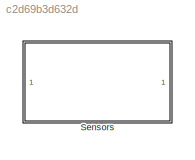
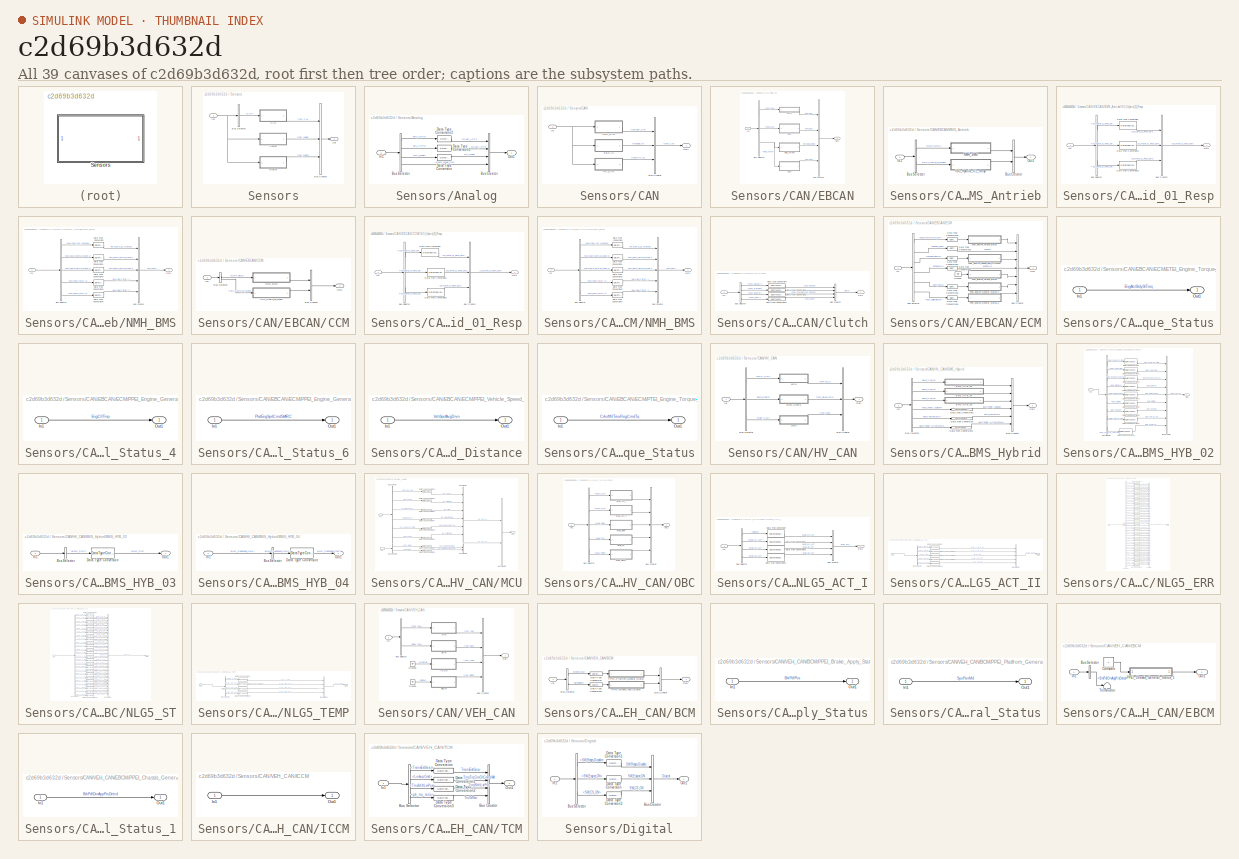
[diagram: thumbnail index - all 39 canvases of the model, root first then tree order]
MODEL slx_c2d69b3d632d
KIND library
CONFIG AbsTol = auto
CONFIG EnableMultiTasking = off
CONFIG FixedStep = auto
CONFIG MaxStep = auto
CONFIG MinStep = auto
CONFIG RelTol = 1e-3
CONFIG SampleTimeConstraint = Unconstrained
CONFIG Solver = VariableStepAuto
CONFIG SolverName = VariableStepAuto
CONFIG StartTime = 0.0
CONFIG StopTime = 10.0
BLOCK [SubSystem] Sensors
  Ports = [1, 1]
  RequestExecContextInheritance = off
  Variant = off
BLOCK [SubSystem] Sensors/Analog
  Ports = [1, 1]
  RequestExecContextInheritance = off
  Variant = off
BLOCK [BusCreator] Sensors/Analog/Bus Creator
  DisplayOption = bar
  InheritFromInputs = on
  Inputs = 4
  Ports = [4, 1]
BLOCK [BusSelector] Sensors/Analog/Bus Selector
  OutputAsBus = off
  OutputSignals = Driver_Signals.drv_APP1,Driver_Signals.drv_APP2,DC_mode,Driver_Signals.Sport_Mode_SW
  Ports = [1, 4]
BLOCK [DataTypeConversion] Sensors/Analog/Data Type Conversion
  RndMeth = Floor
  SaturateOnIntegerOverflow = off
BLOCK [DataTypeConversion] Sensors/Analog/Data Type Conversion1
  RndMeth = Floor
  SaturateOnIntegerOverflow = off
BLOCK [DataTypeConversion] Sensors/Analog/Data Type Conversion2
  RndMeth = Floor
  SaturateOnIntegerOverflow = off
BLOCK [Inport] Sensors/Analog/In1
  IconDisplay = Port number
BLOCK [Outport] Sensors/Analog/Out1
  IconDisplay = Port number
BLOCK [BusCreator] Sensors/Bus Creator
  DisplayOption = bar
  InheritFromInputs = on
  Inputs = 3
  Ports = [3, 1]
BLOCK [BusSelector] Sensors/Bus Selector
  OutputAsBus = off
  OutputSignals = CAN
  Ports = [1, 1]
BLOCK [SubSystem] Sensors/CAN
  Ports = [1, 1]
  RequestExecContextInheritance = off
  Variant = off
BLOCK [BusCreator] Sensors/CAN/Bus Creator
  DisplayOption = bar
  InheritFromInputs = on
  Inputs = 3
  Ports = [3, 1]
BLOCK [SubSystem] Sensors/CAN/EBCAN
  Ports = [1, 1]
  RequestExecContextInheritance = off
  Variant = off
BLOCK [SubSystem] Sensors/CAN/EBCAN/BMS_Antrieb
  Ports = [1, 1]
  RequestExecContextInheritance = off
  Variant = off
BLOCK [BusCreator] Sensors/CAN/EBCAN/BMS_Antrieb/Bus Creator
  DisplayOption = bar
  InheritFromInputs = on
  Inputs = 2
  Ports = [2, 1]
BLOCK [BusSelector] Sensors/CAN/EBCAN/BMS_Antrieb/Bus Selector
  OutputAsBus = off
  OutputSignals = NMH_BMS,ISO_Hybrid_01_Resp
  Ports = [1, 2]
BLOCK [SubSystem] Sensors/CAN/EBCAN/BMS_Antrieb/ISO_Hybrid_01_Resp
  Ports = [1, 1]
  RequestExecContextInheritance = off
  Variant = off
BLOCK [BusCreator] Sensors/CAN/EBCAN/BMS_Antrieb/ISO_Hybrid_01_Resp/Bus Creator
  DisplayOption = bar
  InheritFromInputs = on
  Inputs = 3
  Ports = [3, 1]
BLOCK [BusSelector] Sensors/CAN/EBCAN/BMS_Antrieb/ISO_Hybrid_01_Resp/Bus Selector
  OutputAsBus = off
  OutputSignals = ISO_Hybrid_01_Resp_Data_4,ISO_Hybrid_01_Resp_Data_5,ISO_Hybrid_01_Resp_Data_6
  Ports = [1, 3]
BLOCK [DataTypeConversion] Sensors/CAN/EBCAN/BMS_Antrieb/ISO_Hybrid_01_Resp/Data Type Conversion
  RndMeth = Floor
  SaturateOnIntegerOverflow = off
BLOCK [DataTypeConversion] Sensors/CAN/EBCAN/BMS_Antrieb/ISO_Hybrid_01_Resp/Data Type Conversion1
  RndMeth = Floor
  SaturateOnIntegerOverflow = off
BLOCK [DataTypeConversion] Sensors/CAN/EBCAN/BMS_Antrieb/ISO_Hybrid_01_Resp/Data Type Conversion2
  RndMeth = Floor
  SaturateOnIntegerOverflow = off
BLOCK [Inport] Sensors/CAN/EBCAN/BMS_Antrieb/ISO_Hybrid_01_Resp/In1
  IconDisplay = Port number
BLOCK [Outport] Sensors/CAN/EBCAN/BMS_Antrieb/ISO_Hybrid_01_Resp/Out1
  IconDisplay = Port number
BLOCK [Inport] Sensors/CAN/EBCAN/BMS_Antrieb/In1
  IconDisplay = Port number
BLOCK [SubSystem] Sensors/CAN/EBCAN/BMS_Antrieb/NMH_BMS
  Ports = [1, 1]
  RequestExecContextInheritance = off
  Variant = off
BLOCK [BusCreator] Sensors/CAN/EBCAN/BMS_Antrieb/NMH_BMS/Bus Creator
  DisplayOption = bar
  InheritFromInputs = on
  Inputs = 5
  Ports = [5, 1]
BLOCK [BusSelector] Sensors/CAN/EBCAN/BMS_Antrieb/NMH_BMS/Bus Selector
  OutputAsBus = off
  OutputSignals = NMH_BMS_Car_WakeUp,NMH_BMS_Normal_Mode_1,NMH_BMS_Normal_Mode_2,NMH_BMS_Start_1,NMH_BMS_Start_2
  Ports = [1, 5]
BLOCK [DataTypeConversion] Sensors/CAN/EBCAN/BMS_Antrieb/NMH_BMS/Data Type Conversion
  RndMeth = Floor
  SaturateOnIntegerOverflow = off
BLOCK [DataTypeConversion] Sensors/CAN/EBCAN/BMS_Antrieb/NMH_BMS/Data Type Conversion1
  RndMeth = Floor
  SaturateOnIntegerOverflow = off
BLOCK [DataTypeConversion] Sensors/CAN/EBCAN/BMS_Antrieb/NMH_BMS/Data Type Conversion2
  RndMeth = Floor
  SaturateOnIntegerOverflow = off
BLOCK [DataTypeConversion] Sensors/CAN/EBCAN/BMS_Antrieb/NMH_BMS/Data Type Conversion3
  RndMeth = Floor
  SaturateOnIntegerOverflow = off
BLOCK [DataTypeConversion] Sensors/CAN/EBCAN/BMS_Antrieb/NMH_BMS/Data Type Conversion4
  RndMeth = Floor
  SaturateOnIntegerOverflow = off
BLOCK [Inport] Sensors/CAN/EBCAN/BMS_Antrieb/NMH_BMS/In1
  IconDisplay = Port number
BLOCK [Outport] Sensors/CAN/EBCAN/BMS_Antrieb/NMH_BMS/Out1
  IconDisplay = Port number
BLOCK [Outport] Sensors/CAN/EBCAN/BMS_Antrieb/Out1
  IconDisplay = Port number
BLOCK [BusCreator] Sensors/CAN/EBCAN/Bus Creator
  DisplayOption = bar
  InheritFromInputs = on
  Inputs = 4
  Ports = [4, 1]
BLOCK [BusSelector] Sensors/CAN/EBCAN/Bus Selector
  OutputAsBus = off
  OutputSignals = CCU_CAN,ECM_CAN,BMS_CAN.BMS_Hybrid
  Ports = [1, 3]
BLOCK [SubSystem] Sensors/CAN/EBCAN/CCM
  Ports = [1, 1]
  RequestExecContextInheritance = off
  Variant = off
BLOCK [BusCreator] Sensors/CAN/EBCAN/CCM/Bus Creator
  DisplayOption = bar
  InheritFromInputs = on
  Inputs = 2
  Ports = [2, 1]
BLOCK [BusSelector] Sensors/CAN/EBCAN/CCM/Bus Selector
  OutputAsBus = off
  OutputSignals = NMH_BMS,ISO_Hybrid_01_Resp
  Ports = [1, 2]
BLOCK [SubSystem] Sensors/CAN/EBCAN/CCM/ISO_Hybrid_01_Resp
  Ports = [1, 1]
  RequestExecContextInheritance = off
  Variant = off
BLOCK [BusCreator] Sensors/CAN/EBCAN/CCM/ISO_Hybrid_01_Resp/Bus Creator
  DisplayOption = bar
  InheritFromInputs = on
  Inputs = 3
  Ports = [3, 1]
BLOCK [BusSelector] Sensors/CAN/EBCAN/CCM/ISO_Hybrid_01_Resp/Bus Selector
  OutputAsBus = off
  OutputSignals = ISO_Hybrid_01_Resp_Data_4,ISO_Hybrid_01_Resp_Data_5,ISO_Hybrid_01_Resp_Data_6
  Ports = [1, 3]
BLOCK [DataTypeConversion] Sensors/CAN/EBCAN/CCM/ISO_Hybrid_01_Resp/Data Type Conversion
  RndMeth = Floor
  SaturateOnIntegerOverflow = off
BLOCK [DataTypeConversion] Sensors/CAN/EBCAN/CCM/ISO_Hybrid_01_Resp/Data Type Conversion1
  RndMeth = Floor
  SaturateOnIntegerOverflow = off
BLOCK [DataTypeConversion] Sensors/CAN/EBCAN/CCM/ISO_Hybrid_01_Resp/Data Type Conversion2
  RndMeth = Floor
  SaturateOnIntegerOverflow = off
BLOCK [Inport] Sensors/CAN/EBCAN/CCM/ISO_Hybrid_01_Resp/In1
  IconDisplay = Port number
BLOCK [Outport] Sensors/CAN/EBCAN/CCM/ISO_Hybrid_01_Resp/Out1
  IconDisplay = Port number
BLOCK [Inport] Sensors/CAN/EBCAN/CCM/In1
  IconDisplay = Port number
BLOCK [SubSystem] Sensors/CAN/EBCAN/CCM/NMH_BMS
  Ports = [1, 1]
  RequestExecContextInheritance = off
  Variant = off
BLOCK [BusCreator] Sensors/CAN/EBCAN/CCM/NMH_BMS/Bus Creator
  DisplayOption = bar
  InheritFromInputs = on
  Inputs = 5
  Ports = [5, 1]
BLOCK [BusSelector] Sensors/CAN/EBCAN/CCM/NMH_BMS/Bus Selector
  OutputAsBus = off
  OutputSignals = NMH_BMS_Car_WakeUp,NMH_BMS_Normal_Mode_1,NMH_BMS_Normal_Mode_2,NMH_BMS_Start_1,NMH_BMS_Start_2
  Ports = [1, 5]
BLOCK [DataTypeConversion] Sensors/CAN/EBCAN/CCM/NMH_BMS/Data Type Conversion
  RndMeth = Floor
  SaturateOnIntegerOverflow = off
BLOCK [DataTypeConversion] Sensors/CAN/EBCAN/CCM/NMH_BMS/Data Type Conversion1
  RndMeth = Floor
  SaturateOnIntegerOverflow = off
BLOCK [DataTypeConversion] Sensors/CAN/EBCAN/CCM/NMH_BMS/Data Type Conversion2
  RndMeth = Floor
  SaturateOnIntegerOverflow = off
BLOCK [DataTypeConversion] Sensors/CAN/EBCAN/CCM/NMH_BMS/Data Type Conversion3
  RndMeth = Floor
  SaturateOnIntegerOverflow = off
BLOCK [DataTypeConversion] Sensors/CAN/EBCAN/CCM/NMH_BMS/Data Type Conversion4
  RndMeth = Floor
  SaturateOnIntegerOverflow = off
BLOCK [Inport] Sensors/CAN/EBCAN/CCM/NMH_BMS/In1
  IconDisplay = Port number
BLOCK [Outport] Sensors/CAN/EBCAN/CCM/NMH_BMS/Out1
  IconDisplay = Port number
BLOCK [Outport] Sensors/CAN/EBCAN/CCM/Out1
  IconDisplay = Port number
BLOCK [SubSystem] Sensors/CAN/EBCAN/Clutch
  Ports = [1, 1]
  RequestExecContextInheritance = off
  Variant = off
BLOCK [BusCreator] Sensors/CAN/EBCAN/Clutch/Bus Creator
  DisplayOption = bar
  InheritFromInputs = on
  Inputs = 4
  Ports = [4, 1]
BLOCK [BusSelector] Sensors/CAN/EBCAN/Clutch/Bus Selector
  OutputAsBus = off
  OutputSignals = CY01_posCurr,CY01_stMode,CY01_Counter,CY01_pCurr
  Ports = [1, 4]
BLOCK [DataTypeConversion] Sensors/CAN/EBCAN/Clutch/Data Type Conversion
  RndMeth = Floor
  SaturateOnIntegerOverflow = off
BLOCK [DataTypeConversion] Sensors/CAN/EBCAN/Clutch/Data Type Conversion1
  RndMeth = Floor
  SaturateOnIntegerOverflow = off
BLOCK [DataTypeConversion] Sensors/CAN/EBCAN/Clutch/Data Type Conversion2
  RndMeth = Floor
  SaturateOnIntegerOverflow = off
BLOCK [DataTypeConversion] Sensors/CAN/EBCAN/Clutch/Data Type Conversion3
  RndMeth = Floor
  SaturateOnIntegerOverflow = off
BLOCK [Inport] Sensors/CAN/EBCAN/Clutch/In1
  IconDisplay = Port number
BLOCK [Outport] Sensors/CAN/EBCAN/Clutch/Out1
  IconDisplay = Port number
BLOCK [SubSystem] Sensors/CAN/EBCAN/ECM
  Ports = [1, 1]
  RequestExecContextInheritance = off
  Variant = off
BLOCK [BusCreator] Sensors/CAN/EBCAN/ECM/Bus Creator
  DisplayOption = bar
  InheritFromInputs = on
  Inputs = 7
  Ports = [7, 1]
BLOCK [BusSelector] Sensors/CAN/EBCAN/ECM/Bus Selector
  OutputAsBus = off
  OutputSignals = Sensors_to_ECM.EngActStdyStTorq_Nm,Sensors_to_ECM.EngSpd_RPM,ECM_to_Actuators.VehSpdAvgDrvn,ECM_to_Actuators.EngRunAtv,ECM_to_Actuators.Eng_Temp,ECM_to_Actuators.ECM_RollingAliveCnt
  Ports = [1, 6]
BLOCK [DataTypeConversion] Sensors/CAN/EBCAN/ECM/Data Type Conversion1
  RndMeth = Floor
  SaturateOnIntegerOverflow = off
BLOCK [DataTypeConversion] Sensors/CAN/EBCAN/ECM/Data Type Conversion2
  RndMeth = Floor
  SaturateOnIntegerOverflow = off
BLOCK [DataTypeConversion] Sensors/CAN/EBCAN/ECM/Data Type Conversion3
  RndMeth = Floor
  SaturateOnIntegerOverflow = off
BLOCK [DataTypeConversion] Sensors/CAN/EBCAN/ECM/Data Type Conversion4
  RndMeth = Floor
  SaturateOnIntegerOverflow = off
BLOCK [DataTypeConversion] Sensors/CAN/EBCAN/ECM/Data Type Conversion5
  RndMeth = Floor
  SaturateOnIntegerOverflow = off
BLOCK [DataTypeConversion] Sensors/CAN/EBCAN/ECM/Data Type Conversion6
  RndMeth = Floor
  SaturateOnIntegerOverflow = off
BLOCK [SubSystem] Sensors/CAN/EBCAN/ECM/ETEI_Engine_Torque_Status
  Ports = [1, 1]
  RequestExecContextInheritance = off
  Variant = off
BLOCK [Inport] Sensors/CAN/EBCAN/ECM/ETEI_Engine_Torque_Status/In1
  IconDisplay = Port number
BLOCK [Outport] Sensors/CAN/EBCAN/ECM/ETEI_Engine_Torque_Status/Out1
  IconDisplay = Port number
BLOCK [Ground] Sensors/CAN/EBCAN/ECM/Ground
BLOCK [Inport] Sensors/CAN/EBCAN/ECM/In1
  IconDisplay = Port number
BLOCK [Outport] Sensors/CAN/EBCAN/ECM/Out1
  IconDisplay = Port number
BLOCK [SubSystem] Sensors/CAN/EBCAN/ECM/PPEI_Engine_General_Status_4
  Ports = [1, 1]
  RequestExecContextInheritance = off
  Variant = off
BLOCK [Inport] Sensors/CAN/EBCAN/ECM/PPEI_Engine_General_Status_4/In1
  IconDisplay = Port number
BLOCK [Outport] Sensors/CAN/EBCAN/ECM/PPEI_Engine_General_Status_4/Out1
  IconDisplay = Port number
BLOCK [SubSystem] Sensors/CAN/EBCAN/ECM/PPEI_Engine_General_Status_6
  Ports = [1, 1]
  RequestExecContextInheritance = off
  Variant = off
BLOCK [Inport] Sensors/CAN/EBCAN/ECM/PPEI_Engine_General_Status_6/In1
  IconDisplay = Port number
BLOCK [Outport] Sensors/CAN/EBCAN/ECM/PPEI_Engine_General_Status_6/Out1
  IconDisplay = Port number
BLOCK [SubSystem] Sensors/CAN/EBCAN/ECM/PPEI_Vehicle_Speed_and_Distance
  Ports = [1, 1]
  RequestExecContextInheritance = off
  Variant = off
BLOCK [Inport] Sensors/CAN/EBCAN/ECM/PPEI_Vehicle_Speed_and_Distance/In1
  IconDisplay = Port number
BLOCK [Outport] Sensors/CAN/EBCAN/ECM/PPEI_Vehicle_Speed_and_Distance/Out1
  IconDisplay = Port number
BLOCK [SubSystem] Sensors/CAN/EBCAN/ECM/PTEI_Engine_Torque_Status
  Ports = [1, 1]
  RequestExecContextInheritance = off
  Variant = off
BLOCK [Inport] Sensors/CAN/EBCAN/ECM/PTEI_Engine_Torque_Status/In1
  IconDisplay = Port number
BLOCK [Outport] Sensors/CAN/EBCAN/ECM/PTEI_Engine_Torque_Status/Out1
  IconDisplay = Port number
BLOCK [Inport] Sensors/CAN/EBCAN/In1
  IconDisplay = Port number
BLOCK [Outport] Sensors/CAN/EBCAN/Out1
  IconDisplay = Port number
BLOCK [SubSystem] Sensors/CAN/HV_CAN
  Ports = [1, 1]
  RequestExecContextInheritance = off
  Variant = off
BLOCK [SubSystem] Sensors/CAN/HV_CAN/BMS_Hybrid
  Ports = [1, 1]
  RequestExecContextInheritance = off
  Variant = off
BLOCK [SubSystem] Sensors/CAN/HV_CAN/BMS_Hybrid/BMS_HYB_02
  Ports = [1, 1]
  RequestExecContextInheritance = off
  Variant = off
BLOCK [BusCreator] Sensors/CAN/HV_CAN/BMS_Hybrid/BMS_HYB_02/Bus Creator
  DisplayOption = bar
  InheritFromInputs = on
  Inputs = 9
  Ports = [9, 1]
BLOCK [BusSelector] Sensors/CAN/HV_CAN/BMS_Hybrid/BMS_HYB_02/Bus Selector
  OutputAsBus = off
  OutputSignals = BMS_Fehler_HS_offen,BMS_Fehler_Pilot,BMS_Init_abgeschlossen,BMS_IstModus,BMS_IstSpannung,BMS_IstStrom,BMS_SleepInd,BMS_HYB_02_BZ,BMS_Fehler_HS_verschweisst
  Ports = [1, 9]
BLOCK [DataTypeConversion] Sensors/CAN/HV_CAN/BMS_Hybrid/BMS_HYB_02/Data Type Conversion
  RndMeth = Floor
  SaturateOnIntegerOverflow = off
BLOCK [DataTypeConversion] Sensors/CAN/HV_CAN/BMS_Hybrid/BMS_HYB_02/Data Type Conversion1
  RndMeth = Floor
  SaturateOnIntegerOverflow = off
BLOCK [DataTypeConversion] Sensors/CAN/HV_CAN/BMS_Hybrid/BMS_HYB_02/Data Type Conversion2
  RndMeth = Floor
  SaturateOnIntegerOverflow = off
BLOCK [DataTypeConversion] Sensors/CAN/HV_CAN/BMS_Hybrid/BMS_HYB_02/Data Type Conversion3
  RndMeth = Floor
  SaturateOnIntegerOverflow = off
BLOCK [DataTypeConversion] Sensors/CAN/HV_CAN/BMS_Hybrid/BMS_HYB_02/Data Type Conversion4
  RndMeth = Floor
  SaturateOnIntegerOverflow = off
BLOCK [DataTypeConversion] Sensors/CAN/HV_CAN/BMS_Hybrid/BMS_HYB_02/Data Type Conversion5
  RndMeth = Floor
  SaturateOnIntegerOverflow = off
BLOCK [DataTypeConversion] Sensors/CAN/HV_CAN/BMS_Hybrid/BMS_HYB_02/Data Type Conversion6
  RndMeth = Floor
  SaturateOnIntegerOverflow = off
BLOCK [DataTypeConversion] Sensors/CAN/HV_CAN/BMS_Hybrid/BMS_HYB_02/Data Type Conversion7
  RndMeth = Floor
  SaturateOnIntegerOverflow = off
BLOCK [DataTypeConversion] Sensors/CAN/HV_CAN/BMS_Hybrid/BMS_HYB_02/Data Type Conversion8
  RndMeth = Floor
  SaturateOnIntegerOverflow = off
BLOCK [Inport] Sensors/CAN/HV_CAN/BMS_Hybrid/BMS_HYB_02/In1
  IconDisplay = Port number
BLOCK [Outport] Sensors/CAN/HV_CAN/BMS_Hybrid/BMS_HYB_02/Out1
  IconDisplay = Port number
BLOCK [SubSystem] Sensors/CAN/HV_CAN/BMS_Hybrid/BMS_HYB_03
  Ports = [1, 1]
  RequestExecContextInheritance = off
  Variant = off
BLOCK [BusSelector] Sensors/CAN/HV_CAN/BMS_Hybrid/BMS_HYB_03/Bus Selector
  OutputAsBus = off
  OutputSignals = BMS_SOC
  Ports = [1, 1]
BLOCK [DataTypeConversion] Sensors/CAN/HV_CAN/BMS_Hybrid/BMS_HYB_03/Data Type Conversion
  RndMeth = Floor
  SaturateOnIntegerOverflow = off
BLOCK [Inport] Sensors/CAN/HV_CAN/BMS_Hybrid/BMS_HYB_03/In1
  IconDisplay = Port number
BLOCK [Outport] Sensors/CAN/HV_CAN/BMS_Hybrid/BMS_HYB_03/Out1
  IconDisplay = Port number
BLOCK [SubSystem] Sensors/CAN/HV_CAN/BMS_Hybrid/BMS_HYB_04
  Ports = [1, 1]
  RequestExecContextInheritance = off
  Variant = off
BLOCK [BusSelector] Sensors/CAN/HV_CAN/BMS_Hybrid/BMS_HYB_04/Bus Selector
  OutputAsBus = off
  OutputSignals = BMS_Spannung_ZwKr
  Ports = [1, 1]
BLOCK [DataTypeConversion] Sensors/CAN/HV_CAN/BMS_Hybrid/BMS_HYB_04/Data Type Conversion
  RndMeth = Floor
  SaturateOnIntegerOverflow = off
BLOCK [Inport] Sensors/CAN/HV_CAN/BMS_Hybrid/BMS_HYB_04/In1
  IconDisplay = Port number
BLOCK [Outport] Sensors/CAN/HV_CAN/BMS_Hybrid/BMS_HYB_04/Out1
  IconDisplay = Port number
BLOCK [BusCreator] Sensors/CAN/HV_CAN/BMS_Hybrid/Bus Creator
  DisplayOption = bar
  InheritFromInputs = on
  Inputs = 6
  Ports = [6, 1]
BLOCK [BusSelector] Sensors/CAN/HV_CAN/BMS_Hybrid/Bus Selector
  OutputAsBus = off
  OutputSignals = BMS_HYB_02,BMS_HYB_04,BMS_HYB_03,BMS_HYB_02.BMS_Fehler_Isolation,BMS_HYB_06.BMS_Temperatur,BMS_HYB_02.BMS_Fehler_HS_verschweisst
  Ports = [1, 6]
BLOCK [DataTypeConversion] Sensors/CAN/HV_CAN/BMS_Hybrid/Data Type Conversion
  RndMeth = Floor
  SaturateOnIntegerOverflow = off
BLOCK [DataTypeConversion] Sensors/CAN/HV_CAN/BMS_Hybrid/Data Type Conversion1
  RndMeth = Floor
  SaturateOnIntegerOverflow = off
BLOCK [DataTypeConversion] Sensors/CAN/HV_CAN/BMS_Hybrid/Data Type Conversion2
  RndMeth = Floor
  SaturateOnIntegerOverflow = off
BLOCK [Inport] Sensors/CAN/HV_CAN/BMS_Hybrid/In1
  IconDisplay = Port number
BLOCK [Outport] Sensors/CAN/HV_CAN/BMS_Hybrid/Out1
  IconDisplay = Port number
BLOCK [BusCreator] Sensors/CAN/HV_CAN/Bus Creator
  DisplayOption = bar
  InheritFromInputs = on
  Inputs = 3
  Ports = [3, 1]
BLOCK [BusSelector] Sensors/CAN/HV_CAN/Bus Selector
  OutputAsBus = off
  OutputSignals = MCU_CAN,BMS_CAN.BMS_Plugin,OBC_CAN
  Ports = [1, 3]
BLOCK [Inport] Sensors/CAN/HV_CAN/In1
  IconDisplay = Port number
BLOCK [SubSystem] Sensors/CAN/HV_CAN/MCU
  Ports = [1, 1]
  RequestExecContextInheritance = off
  Variant = off
BLOCK [BusCreator] Sensors/CAN/HV_CAN/MCU/Bus Creator
  DisplayOption = bar
  InheritFromInputs = on
  Inputs = 6
  Ports = [6, 1]
BLOCK [BusCreator] Sensors/CAN/HV_CAN/MCU/Bus Creator1
  DisplayOption = bar
  InheritFromInputs = on
  Inputs = 2
  Ports = [2, 1]
BLOCK [BusCreator] Sensors/CAN/HV_CAN/MCU/Bus Creator2
  DisplayOption = bar
  InheritFromInputs = on
  Inputs = 2
  Ports = [2, 1]
BLOCK [BusSelector] Sensors/CAN/HV_CAN/MCU/Bus Selector
  OutputAsBus = off
  OutputSignals = Sensors_to_MCU.mot_spd_out,Sensors_to_MCU.mot_crr_out,MCU_to _Actuator.InverterEnabled,MCU_to _Actuator.MotTrqFdbck,MCU_to _Actuator.D3_Power_On_Timer,Sensors_to_MCU.mot_volt_in
  Ports = [1, 6]
BLOCK [BusSelector] Sensors/CAN/HV_CAN/MCU/Bus Selector1
  OutputAsBus = off
  OutputSignals = Sensors_to_MCU.mcu_temp,Sensors_to_MCU.mot_temp
  Ports = [1, 2]
BLOCK [DataTypeConversion] Sensors/CAN/HV_CAN/MCU/Data Type Conversion1
  RndMeth = Floor
  SaturateOnIntegerOverflow = off
BLOCK [DataTypeConversion] Sensors/CAN/HV_CAN/MCU/Data Type Conversion2
  RndMeth = Floor
  SaturateOnIntegerOverflow = off
BLOCK [DataTypeConversion] Sensors/CAN/HV_CAN/MCU/Data Type Conversion3
  RndMeth = Floor
  SaturateOnIntegerOverflow = off
BLOCK [DataTypeConversion] Sensors/CAN/HV_CAN/MCU/Data Type Conversion4
  RndMeth = Floor
  SaturateOnIntegerOverflow = off
BLOCK [DataTypeConversion] Sensors/CAN/HV_CAN/MCU/Data Type Conversion5
  RndMeth = Floor
  SaturateOnIntegerOverflow = off
BLOCK [DataTypeConversion] Sensors/CAN/HV_CAN/MCU/Data Type Conversion7
  RndMeth = Floor
  SaturateOnIntegerOverflow = off
BLOCK [DataTypeConversion] Sensors/CAN/HV_CAN/MCU/Data Type Conversion8
  RndMeth = Floor
  SaturateOnIntegerOverflow = off
BLOCK [DataTypeConversion] Sensors/CAN/HV_CAN/MCU/Data Type Conversion9
  RndMeth = Floor
  SaturateOnIntegerOverflow = off
BLOCK [Inport] Sensors/CAN/HV_CAN/MCU/In1
  IconDisplay = Port number
BLOCK [InportShadow] Sensors/CAN/HV_CAN/MCU/In2
  IconDisplay = Port number
BLOCK [Outport] Sensors/CAN/HV_CAN/MCU/Out1
  IconDisplay = Port number
BLOCK [SubSystem] Sensors/CAN/HV_CAN/OBC
  Ports = [1, 1]
  RequestExecContextInheritance = off
  Variant = off
BLOCK [BusCreator] Sensors/CAN/HV_CAN/OBC/Bus Creator
  DisplayOption = bar
  InheritFromInputs = on
  Inputs = 5
  Ports = [5, 1]
BLOCK [BusSelector] Sensors/CAN/HV_CAN/OBC/Bus Selector
  OutputAsBus = off
  OutputSignals = NLG5_ACT_I,NLG5_ACT_II,NLG5_ERR,NLG5_ST,NLG5_TEMP
  Ports = [1, 5]
BLOCK [Inport] Sensors/CAN/HV_CAN/OBC/In1
  IconDisplay = Port number
BLOCK [SubSystem] Sensors/CAN/HV_CAN/OBC/NLG5_ACT_I
  Ports = [1, 1]
  RequestExecContextInheritance = off
  Variant = off
BLOCK [BusCreator] Sensors/CAN/HV_CAN/OBC/NLG5_ACT_I/Bus Creator
  DisplayOption = bar
  InheritFromInputs = on
  Inputs = 4
  Ports = [4, 1]
BLOCK [BusSelector] Sensors/CAN/HV_CAN/OBC/NLG5_ACT_I/Bus Selector
  OutputAsBus = off
  OutputSignals = signal1,NLG5_MV_ACT,NLG5_OV_ACT,NLG5_OC_ACT
  Ports = [1, 4]
BLOCK [DataTypeConversion] Sensors/CAN/HV_CAN/OBC/NLG5_ACT_I/Data Type Conversion
  RndMeth = Floor
  SaturateOnIntegerOverflow = off
BLOCK [DataTypeConversion] Sensors/CAN/HV_CAN/OBC/NLG5_ACT_I/Data Type Conversion1
  RndMeth = Floor
  SaturateOnIntegerOverflow = off
BLOCK [DataTypeConversion] Sensors/CAN/HV_CAN/OBC/NLG5_ACT_I/Data Type Conversion2
  RndMeth = Floor
  SaturateOnIntegerOverflow = off
BLOCK [DataTypeConversion] Sensors/CAN/HV_CAN/OBC/NLG5_ACT_I/Data Type Conversion3
  RndMeth = Floor
  SaturateOnIntegerOverflow = off
BLOCK [Inport] Sensors/CAN/HV_CAN/OBC/NLG5_ACT_I/In1
  IconDisplay = Port number
BLOCK [Outport] Sensors/CAN/HV_CAN/OBC/NLG5_ACT_I/Out1
  IconDisplay = Port number
BLOCK [SubSystem] Sensors/CAN/HV_CAN/OBC/NLG5_ACT_II
  Ports = [1, 1]
  RequestExecContextInheritance = off
  Variant = off
BLOCK [BusCreator] Sensors/CAN/HV_CAN/OBC/NLG5_ACT_II/Bus Creator
  DisplayOption = bar
  InheritFromInputs = on
  Inputs = 5
  Ports = [5, 1]
BLOCK [BusSelector] Sensors/CAN/HV_CAN/OBC/NLG5_ACT_II/Bus Selector
  OutputAsBus = off
  OutputSignals = NLG5_S_MC_M_CP,NLG5_S_MC_M_PI,NLG5_ABV,NLG5_AHC_EXT,NLG5_OC_BO
  Ports = [1, 5]
BLOCK [DataTypeConversion] Sensors/CAN/HV_CAN/OBC/NLG5_ACT_II/Data Type Conversion
  RndMeth = Floor
  SaturateOnIntegerOverflow = off
BLOCK [DataTypeConversion] Sensors/CAN/HV_CAN/OBC/NLG5_ACT_II/Data Type Conversion1
  RndMeth = Floor
  SaturateOnIntegerOverflow = off
BLOCK [DataTypeConversion] Sensors/CAN/HV_CAN/OBC/NLG5_ACT_II/Data Type Conversion2
  RndMeth = Floor
  SaturateOnIntegerOverflow = off
BLOCK [DataTypeConversion] Sensors/CAN/HV_CAN/OBC/NLG5_ACT_II/Data Type Conversion3
  RndMeth = Floor
  SaturateOnIntegerOverflow = off
BLOCK [DataTypeConversion] Sensors/CAN/HV_CAN/OBC/NLG5_ACT_II/Data Type Conversion4
  RndMeth = Floor
  SaturateOnIntegerOverflow = off
BLOCK [Inport] Sensors/CAN/HV_CAN/OBC/NLG5_ACT_II/In1
  IconDisplay = Port number
BLOCK [Outport] Sensors/CAN/HV_CAN/OBC/NLG5_ACT_II/Out1
  IconDisplay = Port number
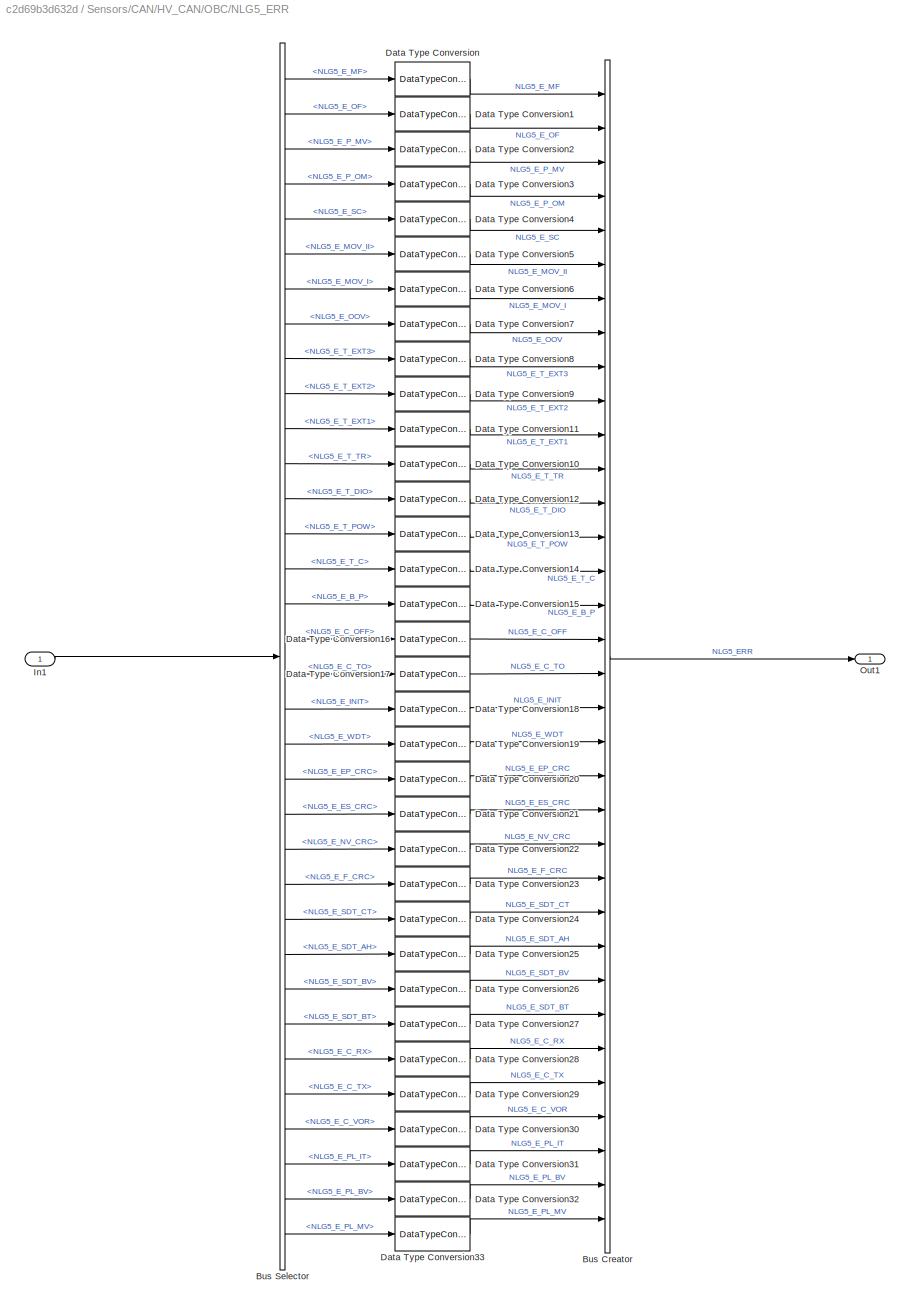
BLOCK [SubSystem] Sensors/CAN/HV_CAN/OBC/NLG5_ERR
  Ports = [1, 1]
  RequestExecContextInheritance = off
  Variant = off
BLOCK [BusCreator] Sensors/CAN/HV_CAN/OBC/NLG5_ERR/Bus Creator
  DisplayOption = bar
  InheritFromInputs = on
  Inputs = 34
  Ports = [34, 1]
BLOCK [BusSelector] Sensors/CAN/HV_CAN/OBC/NLG5_ERR/Bus Selector
  OutputAsBus = off
  OutputSignals = NLG5_E_MF,NLG5_E_OF,NLG5_E_P_MV,NLG5_E_P_OM,NLG5_E_SC,NLG5_E_MOV_II,NLG5_E_MOV_I,NLG5_E_OOV,NLG5_E_T_EXT3,NLG5_E_T_EXT2,NLG5_E_T_EXT1,NLG5_E_T_TR,NLG5_E_T_DIO,NLG5_E_T_POW,NLG5_E_T_C,NLG5_E_B_P,NLG5_E_C_OFF,NLG5_E_C_TO,NLG5_E_INIT,NLG5_E_WDT,NLG5_E_EP_CRC,NLG5_E_ES_CRC,NLG5_E_NV_CRC,NLG5_E_F_CRC,NLG5_E_SDT_CT,NLG5_E_SDT_AH,NLG5_E_SDT_BV,NLG5_E_SDT_BT,NLG5_E_C_RX,NLG5_E_C_TX,NLG5_E_C_VOR,NLG5_E_PL_...<+28ch>
  Ports = [1, 34]
BLOCK [DataTypeConversion] Sensors/CAN/HV_CAN/OBC/NLG5_ERR/Data Type Conversion
  RndMeth = Floor
  SaturateOnIntegerOverflow = off
BLOCK [DataTypeConversion] Sensors/CAN/HV_CAN/OBC/NLG5_ERR/Data Type Conversion1
  RndMeth = Floor
  SaturateOnIntegerOverflow = off
BLOCK [DataTypeConversion] Sensors/CAN/HV_CAN/OBC/NLG5_ERR/Data Type Conversion10
  RndMeth = Floor
  SaturateOnIntegerOverflow = off
BLOCK [DataTypeConversion] Sensors/CAN/HV_CAN/OBC/NLG5_ERR/Data Type Conversion11
  RndMeth = Floor
  SaturateOnIntegerOverflow = off
BLOCK [DataTypeConversion] Sensors/CAN/HV_CAN/OBC/NLG5_ERR/Data Type Conversion12
  RndMeth = Floor
  SaturateOnIntegerOverflow = off
BLOCK [DataTypeConversion] Sensors/CAN/HV_CAN/OBC/NLG5_ERR/Data Type Conversion13
  RndMeth = Floor
  SaturateOnIntegerOverflow = off
BLOCK [DataTypeConversion] Sensors/CAN/HV_CAN/OBC/NLG5_ERR/Data Type Conversion14
  RndMeth = Floor
  SaturateOnIntegerOverflow = off
BLOCK [DataTypeConversion] Sensors/CAN/HV_CAN/OBC/NLG5_ERR/Data Type Conversion15
  RndMeth = Floor
  SaturateOnIntegerOverflow = off
BLOCK [DataTypeConversion] Sensors/CAN/HV_CAN/OBC/NLG5_ERR/Data Type Conversion16
  RndMeth = Floor
  SaturateOnIntegerOverflow = off
BLOCK [DataTypeConversion] Sensors/CAN/HV_CAN/OBC/NLG5_ERR/Data Type Conversion17
  RndMeth = Floor
  SaturateOnIntegerOverflow = off
BLOCK [DataTypeConversion] Sensors/CAN/HV_CAN/OBC/NLG5_ERR/Data Type Conversion18
  RndMeth = Floor
  SaturateOnIntegerOverflow = off
BLOCK [DataTypeConversion] Sensors/CAN/HV_CAN/OBC/NLG5_ERR/Data Type Conversion19
  RndMeth = Floor
  SaturateOnIntegerOverflow = off
BLOCK [DataTypeConversion] Sensors/CAN/HV_CAN/OBC/NLG5_ERR/Data Type Conversion2
  RndMeth = Floor
  SaturateOnIntegerOverflow = off
BLOCK [DataTypeConversion] Sensors/CAN/HV_CAN/OBC/NLG5_ERR/Data Type Conversion20
  RndMeth = Floor
  SaturateOnIntegerOverflow = off
BLOCK [DataTypeConversion] Sensors/CAN/HV_CAN/OBC/NLG5_ERR/Data Type Conversion21
  RndMeth = Floor
  SaturateOnIntegerOverflow = off
BLOCK [DataTypeConversion] Sensors/CAN/HV_CAN/OBC/NLG5_ERR/Data Type Conversion22
  RndMeth = Floor
  SaturateOnIntegerOverflow = off
BLOCK [DataTypeConversion] Sensors/CAN/HV_CAN/OBC/NLG5_ERR/Data Type Conversion23
  RndMeth = Floor
  SaturateOnIntegerOverflow = off
BLOCK [DataTypeConversion] Sensors/CAN/HV_CAN/OBC/NLG5_ERR/Data Type Conversion24
  RndMeth = Floor
  SaturateOnIntegerOverflow = off
BLOCK [DataTypeConversion] Sensors/CAN/HV_CAN/OBC/NLG5_ERR/Data Type Conversion25
  RndMeth = Floor
  SaturateOnIntegerOverflow = off
BLOCK [DataTypeConversion] Sensors/CAN/HV_CAN/OBC/NLG5_ERR/Data Type Conversion26
  RndMeth = Floor
  SaturateOnIntegerOverflow = off
BLOCK [DataTypeConversion] Sensors/CAN/HV_CAN/OBC/NLG5_ERR/Data Type Conversion27
  RndMeth = Floor
  SaturateOnIntegerOverflow = off
BLOCK [DataTypeConversion] Sensors/CAN/HV_CAN/OBC/NLG5_ERR/Data Type Conversion28
  RndMeth = Floor
  SaturateOnIntegerOverflow = off
BLOCK [DataTypeConversion] Sensors/CAN/HV_CAN/OBC/NLG5_ERR/Data Type Conversion29
  RndMeth = Floor
  SaturateOnIntegerOverflow = off
BLOCK [DataTypeConversion] Sensors/CAN/HV_CAN/OBC/NLG5_ERR/Data Type Conversion3
  RndMeth = Floor
  SaturateOnIntegerOverflow = off
BLOCK [DataTypeConversion] Sensors/CAN/HV_CAN/OBC/NLG5_ERR/Data Type Conversion30
  RndMeth = Floor
  SaturateOnIntegerOverflow = off
BLOCK [DataTypeConversion] Sensors/CAN/HV_CAN/OBC/NLG5_ERR/Data Type Conversion31
  RndMeth = Floor
  SaturateOnIntegerOverflow = off
BLOCK [DataTypeConversion] Sensors/CAN/HV_CAN/OBC/NLG5_ERR/Data Type Conversion32
  RndMeth = Floor
  SaturateOnIntegerOverflow = off
BLOCK [DataTypeConversion] Sensors/CAN/HV_CAN/OBC/NLG5_ERR/Data Type Conversion33
  RndMeth = Floor
  SaturateOnIntegerOverflow = off
BLOCK [DataTypeConversion] Sensors/CAN/HV_CAN/OBC/NLG5_ERR/Data Type Conversion4
  RndMeth = Floor
  SaturateOnIntegerOverflow = off
BLOCK [DataTypeConversion] Sensors/CAN/HV_CAN/OBC/NLG5_ERR/Data Type Conversion5
  RndMeth = Floor
  SaturateOnIntegerOverflow = off
BLOCK [DataTypeConversion] Sensors/CAN/HV_CAN/OBC/NLG5_ERR/Data Type Conversion6
  RndMeth = Floor
  SaturateOnIntegerOverflow = off
BLOCK [DataTypeConversion] Sensors/CAN/HV_CAN/OBC/NLG5_ERR/Data Type Conversion7
  RndMeth = Floor
  SaturateOnIntegerOverflow = off
BLOCK [DataTypeConversion] Sensors/CAN/HV_CAN/OBC/NLG5_ERR/Data Type Conversion8
  RndMeth = Floor
  SaturateOnIntegerOverflow = off
BLOCK [DataTypeConversion] Sensors/CAN/HV_CAN/OBC/NLG5_ERR/Data Type Conversion9
  RndMeth = Floor
  SaturateOnIntegerOverflow = off
BLOCK [Inport] Sensors/CAN/HV_CAN/OBC/NLG5_ERR/In1
  IconDisplay = Port number
BLOCK [Outport] Sensors/CAN/HV_CAN/OBC/NLG5_ERR/Out1
  IconDisplay = Port number
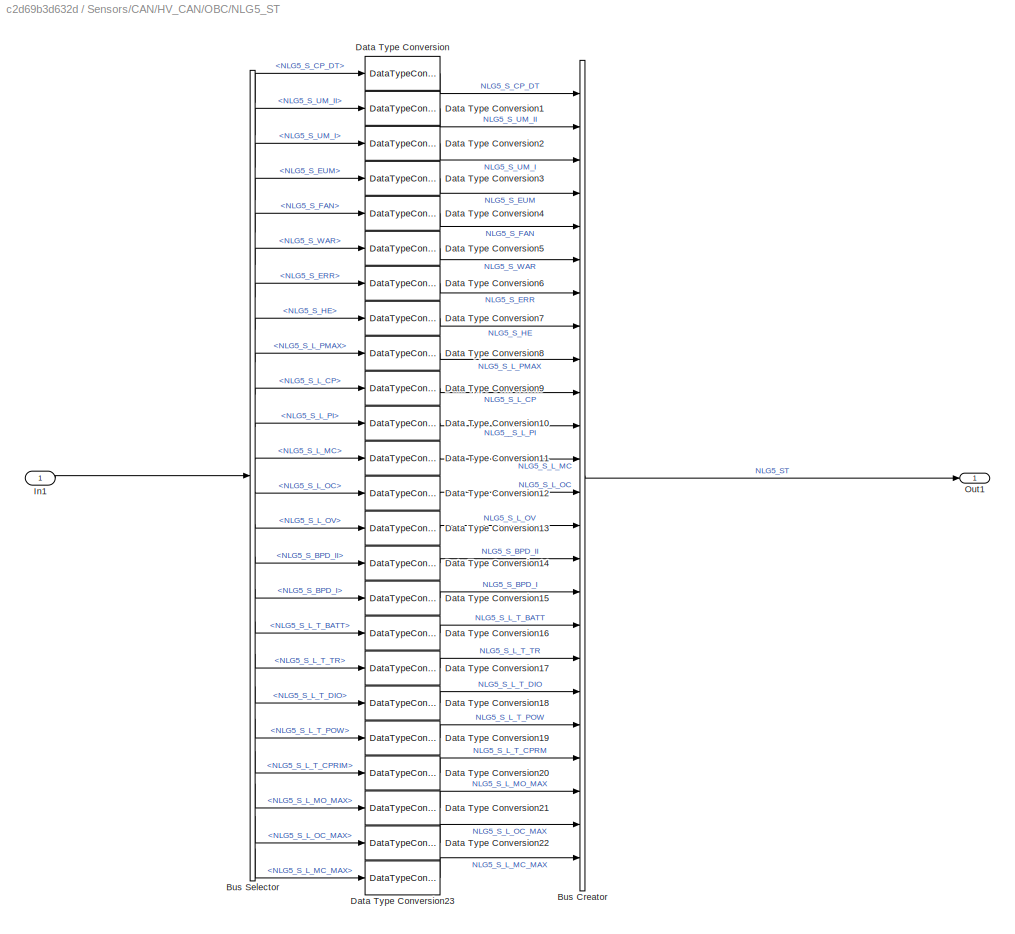
BLOCK [SubSystem] Sensors/CAN/HV_CAN/OBC/NLG5_ST
  Ports = [1, 1]
  RequestExecContextInheritance = off
  Variant = off
BLOCK [BusCreator] Sensors/CAN/HV_CAN/OBC/NLG5_ST/Bus Creator
  DisplayOption = bar
  InheritFromInputs = on
  Inputs = 24
  Ports = [24, 1]
BLOCK [BusSelector] Sensors/CAN/HV_CAN/OBC/NLG5_ST/Bus Selector
  OutputAsBus = off
  OutputSignals = NLG5_S_CP_DT,NLG5_S_UM_II,NLG5_S_UM_I,NLG5_S_EUM,NLG5_S_FAN,NLG5_S_WAR,NLG5_S_ERR,NLG5_S_HE,NLG5_S_L_PMAX,NLG5_S_L_CP,NLG5_S_L_PI,NLG5_S_L_MC,NLG5_S_L_OC,NLG5_S_L_OV,NLG5_S_BPD_II,NLG5_S_BPD_I,NLG5_S_L_T_BATT,NLG5_S_L_T_TR,NLG5_S_L_T_DIO,NLG5_S_L_T_POW,NLG5_S_L_T_CPRIM,NLG5_S_L_MO_MAX,NLG5_S_L_OC_MAX,NLG5_S_L_MC_MAX
  Ports = [1, 24]
BLOCK [DataTypeConversion] Sensors/CAN/HV_CAN/OBC/NLG5_ST/Data Type Conversion
  RndMeth = Floor
  SaturateOnIntegerOverflow = off
BLOCK [DataTypeConversion] Sensors/CAN/HV_CAN/OBC/NLG5_ST/Data Type Conversion1
  RndMeth = Floor
  SaturateOnIntegerOverflow = off
BLOCK [DataTypeConversion] Sensors/CAN/HV_CAN/OBC/NLG5_ST/Data Type Conversion10
  RndMeth = Floor
  SaturateOnIntegerOverflow = off
BLOCK [DataTypeConversion] Sensors/CAN/HV_CAN/OBC/NLG5_ST/Data Type Conversion11
  RndMeth = Floor
  SaturateOnIntegerOverflow = off
BLOCK [DataTypeConversion] Sensors/CAN/HV_CAN/OBC/NLG5_ST/Data Type Conversion12
  RndMeth = Floor
  SaturateOnIntegerOverflow = off
BLOCK [DataTypeConversion] Sensors/CAN/HV_CAN/OBC/NLG5_ST/Data Type Conversion13
  RndMeth = Floor
  SaturateOnIntegerOverflow = off
BLOCK [DataTypeConversion] Sensors/CAN/HV_CAN/OBC/NLG5_ST/Data Type Conversion14
  RndMeth = Floor
  SaturateOnIntegerOverflow = off
BLOCK [DataTypeConversion] Sensors/CAN/HV_CAN/OBC/NLG5_ST/Data Type Conversion15
  RndMeth = Floor
  SaturateOnIntegerOverflow = off
BLOCK [DataTypeConversion] Sensors/CAN/HV_CAN/OBC/NLG5_ST/Data Type Conversion16
  RndMeth = Floor
  SaturateOnIntegerOverflow = off
BLOCK [DataTypeConversion] Sensors/CAN/HV_CAN/OBC/NLG5_ST/Data Type Conversion17
  RndMeth = Floor
  SaturateOnIntegerOverflow = off
BLOCK [DataTypeConversion] Sensors/CAN/HV_CAN/OBC/NLG5_ST/Data Type Conversion18
  RndMeth = Floor
  SaturateOnIntegerOverflow = off
BLOCK [DataTypeConversion] Sensors/CAN/HV_CAN/OBC/NLG5_ST/Data Type Conversion19
  RndMeth = Floor
  SaturateOnIntegerOverflow = off
BLOCK [DataTypeConversion] Sensors/CAN/HV_CAN/OBC/NLG5_ST/Data Type Conversion2
  RndMeth = Floor
  SaturateOnIntegerOverflow = off
BLOCK [DataTypeConversion] Sensors/CAN/HV_CAN/OBC/NLG5_ST/Data Type Conversion20
  RndMeth = Floor
  SaturateOnIntegerOverflow = off
BLOCK [DataTypeConversion] Sensors/CAN/HV_CAN/OBC/NLG5_ST/Data Type Conversion21
  RndMeth = Floor
  SaturateOnIntegerOverflow = off
BLOCK [DataTypeConversion] Sensors/CAN/HV_CAN/OBC/NLG5_ST/Data Type Conversion22
  RndMeth = Floor
  SaturateOnIntegerOverflow = off
BLOCK [DataTypeConversion] Sensors/CAN/HV_CAN/OBC/NLG5_ST/Data Type Conversion23
  RndMeth = Floor
  SaturateOnIntegerOverflow = off
BLOCK [DataTypeConversion] Sensors/CAN/HV_CAN/OBC/NLG5_ST/Data Type Conversion3
  RndMeth = Floor
  SaturateOnIntegerOverflow = off
BLOCK [DataTypeConversion] Sensors/CAN/HV_CAN/OBC/NLG5_ST/Data Type Conversion4
  RndMeth = Floor
  SaturateOnIntegerOverflow = off
BLOCK [DataTypeConversion] Sensors/CAN/HV_CAN/OBC/NLG5_ST/Data Type Conversion5
  RndMeth = Floor
  SaturateOnIntegerOverflow = off
BLOCK [DataTypeConversion] Sensors/CAN/HV_CAN/OBC/NLG5_ST/Data Type Conversion6
  RndMeth = Floor
  SaturateOnIntegerOverflow = off
BLOCK [DataTypeConversion] Sensors/CAN/HV_CAN/OBC/NLG5_ST/Data Type Conversion7
  RndMeth = Floor
  SaturateOnIntegerOverflow = off
BLOCK [DataTypeConversion] Sensors/CAN/HV_CAN/OBC/NLG5_ST/Data Type Conversion8
  RndMeth = Floor
  SaturateOnIntegerOverflow = off
BLOCK [DataTypeConversion] Sensors/CAN/HV_CAN/OBC/NLG5_ST/Data Type Conversion9
  RndMeth = Floor
  SaturateOnIntegerOverflow = off
BLOCK [Inport] Sensors/CAN/HV_CAN/OBC/NLG5_ST/In1
  IconDisplay = Port number
BLOCK [Outport] Sensors/CAN/HV_CAN/OBC/NLG5_ST/Out1
  IconDisplay = Port number
BLOCK [SubSystem] Sensors/CAN/HV_CAN/OBC/NLG5_TEMP
  Ports = [1, 1]
  RequestExecContextInheritance = off
  Variant = off
BLOCK [BusCreator] Sensors/CAN/HV_CAN/OBC/NLG5_TEMP/Bus Creator
  DisplayOption = bar
  InheritFromInputs = on
  Inputs = 4
  Ports = [4, 1]
BLOCK [BusSelector] Sensors/CAN/HV_CAN/OBC/NLG5_TEMP/Bus Selector
  OutputAsBus = off
  OutputSignals = NLG5_P_TMP,NLG5_TMP_EXT1,NLG5_TMP_EXT2,NLG5_TMP_EXT3
  Ports = [1, 4]
BLOCK [DataTypeConversion] Sensors/CAN/HV_CAN/OBC/NLG5_TEMP/Data Type Conversion
  RndMeth = Floor
  SaturateOnIntegerOverflow = off
BLOCK [DataTypeConversion] Sensors/CAN/HV_CAN/OBC/NLG5_TEMP/Data Type Conversion1
  RndMeth = Floor
  SaturateOnIntegerOverflow = off
BLOCK [DataTypeConversion] Sensors/CAN/HV_CAN/OBC/NLG5_TEMP/Data Type Conversion2
  RndMeth = Floor
  SaturateOnIntegerOverflow = off
BLOCK [DataTypeConversion] Sensors/CAN/HV_CAN/OBC/NLG5_TEMP/Data Type Conversion3
  RndMeth = Floor
  SaturateOnIntegerOverflow = off
BLOCK [Inport] Sensors/CAN/HV_CAN/OBC/NLG5_TEMP/In1
  IconDisplay = Port number
BLOCK [Outport] Sensors/CAN/HV_CAN/OBC/NLG5_TEMP/Out1
  IconDisplay = Port number
BLOCK [Outport] Sensors/CAN/HV_CAN/OBC/Out1
  IconDisplay = Port number
BLOCK [Outport] Sensors/CAN/HV_CAN/Out1
  IconDisplay = Port number
BLOCK [Inport] Sensors/CAN/In1
  IconDisplay = Port number
BLOCK [Outport] Sensors/CAN/Out1
  IconDisplay = Port number
BLOCK [SubSystem] Sensors/CAN/VEH_CAN
  Ports = [1, 1]
  RequestExecContextInheritance = off
  Variant = off
BLOCK [SubSystem] Sensors/CAN/VEH_CAN/BCM
  Ports = [1, 1]
  RequestExecContextInheritance = off
  Variant = off
BLOCK [BusCreator] Sensors/CAN/VEH_CAN/BCM/Bus Creator
  DisplayOption = bar
  InheritFromInputs = on
  Inputs = 2
  Ports = [2, 1]
BLOCK [BusSelector] Sensors/CAN/VEH_CAN/BCM/Bus Selector
  OutputAsBus = off
  OutputSignals = SysPwrMd,BrkPdlPos
  Ports = [1, 2]
BLOCK [DataTypeConversion] Sensors/CAN/VEH_CAN/BCM/Data Type Conversion
  RndMeth = Floor
  SaturateOnIntegerOverflow = off
BLOCK [DataTypeConversion] Sensors/CAN/VEH_CAN/BCM/Data Type Conversion1
  RndMeth = Floor
  SaturateOnIntegerOverflow = off
BLOCK [Inport] Sensors/CAN/VEH_CAN/BCM/In1
  IconDisplay = Port number
BLOCK [Outport] Sensors/CAN/VEH_CAN/BCM/Out1
  IconDisplay = Port number
BLOCK [SubSystem] Sensors/CAN/VEH_CAN/BCM/PPEI_Brake_Apply_Status
  Ports = [1, 1]
  RequestExecContextInheritance = off
  Variant = off
BLOCK [Inport] Sensors/CAN/VEH_CAN/BCM/PPEI_Brake_Apply_Status/In1
  IconDisplay = Port number
BLOCK [Outport] Sensors/CAN/VEH_CAN/BCM/PPEI_Brake_Apply_Status/Out1
  IconDisplay = Port number
BLOCK [SubSystem] Sensors/CAN/VEH_CAN/BCM/PPEI_Platfrom_General_Status
  Ports = [1, 1]
  RequestExecContextInheritance = off
  Variant = off
BLOCK [Inport] Sensors/CAN/VEH_CAN/BCM/PPEI_Platfrom_General_Status/In1
  IconDisplay = Port number
BLOCK [Outport] Sensors/CAN/VEH_CAN/BCM/PPEI_Platfrom_General_Status/Out1
  IconDisplay = Port number
BLOCK [BusCreator] Sensors/CAN/VEH_CAN/Bus Creator
  DisplayOption = bar
  InheritFromInputs = on
  Inputs = 4
  Ports = [4, 1]
BLOCK [BusSelector] Sensors/CAN/VEH_CAN/Bus Selector
  OutputAsBus = off
  OutputSignals = TCM_CAN,BCM_CAN
  Ports = [1, 2]
BLOCK [SubSystem] Sensors/CAN/VEH_CAN/EBCM
  Commented = on
  Ports = [1, 1]
  RequestExecContextInheritance = off
  Variant = off
BLOCK [BusSelector] Sensors/CAN/VEH_CAN/EBCM/Bus Selector
  OutputAsBus = off
  OutputSignals = PPEI_Chassis_General_Status_1.BrkPdlDrvAppPrsDetcd
  Ports = [1, 1]
BLOCK [Constant] Sensors/CAN/VEH_CAN/EBCM/Constant
  OutDataTypeStr = boolean
BLOCK [Inport] Sensors/CAN/VEH_CAN/EBCM/In1
  IconDisplay = Port number
BLOCK [Outport] Sensors/CAN/VEH_CAN/EBCM/Out1
  IconDisplay = Port number
BLOCK [SubSystem] Sensors/CAN/VEH_CAN/EBCM/PPEI_Chassis_General_Status_1
  Ports = [1, 1]
  RequestExecContextInheritance = off
  Variant = off
BLOCK [Inport] Sensors/CAN/VEH_CAN/EBCM/PPEI_Chassis_General_Status_1/In1
  IconDisplay = Port number
BLOCK [Outport] Sensors/CAN/VEH_CAN/EBCM/PPEI_Chassis_General_Status_1/Out1
  IconDisplay = Port number
BLOCK [Terminator] Sensors/CAN/VEH_CAN/EBCM/Terminator
BLOCK [Ground] Sensors/CAN/VEH_CAN/Ground
  Commented = on
BLOCK [Ground] Sensors/CAN/VEH_CAN/Ground1
  Commented = on
BLOCK [SubSystem] Sensors/CAN/VEH_CAN/ICCM
  Commented = on
  Ports = [1, 1]
  RequestExecContextInheritance = off
  Variant = off
BLOCK [Inport] Sensors/CAN/VEH_CAN/ICCM/In1
  IconDisplay = Port number
BLOCK [Outport] Sensors/CAN/VEH_CAN/ICCM/Out1
  IconDisplay = Port number
BLOCK [Inport] Sensors/CAN/VEH_CAN/In1
  IconDisplay = Port number
BLOCK [Outport] Sensors/CAN/VEH_CAN/Out1
  IconDisplay = Port number
BLOCK [SubSystem] Sensors/CAN/VEH_CAN/TCM
  Ports = [1, 1]
  RequestExecContextInheritance = off
  Variant = off
BLOCK [BusCreator] Sensors/CAN/VEH_CAN/TCM/Bus Creator
  DisplayOption = bar
  InheritFromInputs = on
  Inputs = 4
  Ports = [4, 1]
BLOCK [BusSelector] Sensors/CAN/VEH_CAN/TCM/Bus Selector
  OutputAsBus = off
  OutputSignals = TCM_to _Actuator.TransEstGear,TCM_to _Actuator.LockupCmd,TCM_to _Actuator.TrnsShftLvrPos,Sensors_to_TCM.gb_trq_ratio
  Ports = [1, 4]
BLOCK [DataTypeConversion] Sensors/CAN/VEH_CAN/TCM/Data Type Conversion
  RndMeth = Floor
  SaturateOnIntegerOverflow = off
BLOCK [DataTypeConversion] Sensors/CAN/VEH_CAN/TCM/Data Type Conversion1
  RndMeth = Floor
  SaturateOnIntegerOverflow = off
BLOCK [DataTypeConversion] Sensors/CAN/VEH_CAN/TCM/Data Type Conversion2
  RndMeth = Floor
  SaturateOnIntegerOverflow = off
BLOCK [DataTypeConversion] Sensors/CAN/VEH_CAN/TCM/Data Type Conversion3
  RndMeth = Floor
  SaturateOnIntegerOverflow = off
BLOCK [Inport] Sensors/CAN/VEH_CAN/TCM/In1
  IconDisplay = Port number
BLOCK [Outport] Sensors/CAN/VEH_CAN/TCM/Out1
  IconDisplay = Port number
BLOCK [SubSystem] Sensors/Digital
  Ports = [1, 1]
  RequestExecContextInheritance = off
  Variant = off
BLOCK [BusCreator] Sensors/Digital/Bus Creator
  DisplayOption = bar
  InheritFromInputs = on
  Inputs = 3
  Ports = [3, 1]
BLOCK [BusSelector] Sensors/Digital/Bus Selector
  OutputAsBus = off
  OutputSignals = Driver_Signals.SW_Regen_Disable,Driver_Signals.SW_Engine_ON,Driver_Signals.SW_CS_ON
  Ports = [1, 3]
BLOCK [DataTypeConversion] Sensors/Digital/Data Type Conversion
  RndMeth = Floor
  SaturateOnIntegerOverflow = off
BLOCK [DataTypeConversion] Sensors/Digital/Data Type Conversion1
  RndMeth = Floor
  SaturateOnIntegerOverflow = off
BLOCK [DataTypeConversion] Sensors/Digital/Data Type Conversion2
  RndMeth = Floor
  SaturateOnIntegerOverflow = off
BLOCK [Inport] Sensors/Digital/In1
  IconDisplay = Port number
BLOCK [Outport] Sensors/Digital/Out1
  IconDisplay = Port number
BLOCK [Inport] Sensors/In1
  IconDisplay = Port number
BLOCK [Outport] Sensors/Out
  IconDisplay = Port number
LINE Sensors/Analog/Bus Creator:1 -> Sensors/Analog/Out1:1
LINE Sensors/Analog/Bus Selector:1 -> Sensors/Analog/Data Type Conversion2:1
LINE Sensors/Analog/Bus Selector:2 -> Sensors/Analog/Data Type Conversion1:1
LINE Sensors/Analog/Bus Selector:3 -> Sensors/Analog/Data Type Conversion:1
LINE Sensors/Analog/Bus Selector:4 -> Sensors/Analog/Bus Creator:4
LINE Sensors/Analog/Data Type Conversion1:1 -> Sensors/Analog/Bus Creator:2
LINE Sensors/Analog/Data Type Conversion2:1 -> Sensors/Analog/Bus Creator:1
LINE Sensors/Analog/Data Type Conversion:1 -> Sensors/Analog/Bus Creator:3
LINE Sensors/Analog/In1:1 -> Sensors/Analog/Bus Selector:1
LINE Sensors/Analog:1 -> Sensors/Bus Creator:2
LINE Sensors/Bus Creator:1 -> Sensors/Out:1
LINE Sensors/Bus Selector:1 -> Sensors/CAN:1
LINE Sensors/CAN/Bus Creator:1 -> Sensors/CAN/Out1:1
LINE Sensors/CAN/EBCAN/BMS_Antrieb/Bus Creator:1 -> Sensors/CAN/EBCAN/BMS_Antrieb/Out1:1
LINE Sensors/CAN/EBCAN/BMS_Antrieb/Bus Selector:1 -> Sensors/CAN/EBCAN/BMS_Antrieb/NMH_BMS:1
LINE Sensors/CAN/EBCAN/BMS_Antrieb/Bus Selector:2 -> Sensors/CAN/EBCAN/BMS_Antrieb/ISO_Hybrid_01_Resp:1
LINE Sensors/CAN/EBCAN/BMS_Antrieb/ISO_Hybrid_01_Resp/Bus Creator:1 -> Sensors/CAN/EBCAN/BMS_Antrieb/ISO_Hybrid_01_Resp/Out1:1
LINE Sensors/CAN/EBCAN/BMS_Antrieb/ISO_Hybrid_01_Resp/Bus Selector:1 -> Sensors/CAN/EBCAN/BMS_Antrieb/ISO_Hybrid_01_Resp/Data Type Conversion:1
LINE Sensors/CAN/EBCAN/BMS_Antrieb/ISO_Hybrid_01_Resp/Bus Selector:2 -> Sensors/CAN/EBCAN/BMS_Antrieb/ISO_Hybrid_01_Resp/Data Type Conversion1:1
LINE Sensors/CAN/EBCAN/BMS_Antrieb/ISO_Hybrid_01_Resp/Bus Selector:3 -> Sensors/CAN/EBCAN/BMS_Antrieb/ISO_Hybrid_01_Resp/Data Type Conversion2:1
LINE Sensors/CAN/EBCAN/BMS_Antrieb/ISO_Hybrid_01_Resp/Data Type Conversion1:1 -> Sensors/CAN/EBCAN/BMS_Antrieb/ISO_Hybrid_01_Resp/Bus Creator:2
LINE Sensors/CAN/EBCAN/BMS_Antrieb/ISO_Hybrid_01_Resp/Data Type Conversion2:1 -> Sensors/CAN/EBCAN/BMS_Antrieb/ISO_Hybrid_01_Resp/Bus Creator:3
LINE Sensors/CAN/EBCAN/BMS_Antrieb/ISO_Hybrid_01_Resp/Data Type Conversion:1 -> Sensors/CAN/EBCAN/BMS_Antrieb/ISO_Hybrid_01_Resp/Bus Creator:1
LINE Sensors/CAN/EBCAN/BMS_Antrieb/ISO_Hybrid_01_Resp/In1:1 -> Sensors/CAN/EBCAN/BMS_Antrieb/ISO_Hybrid_01_Resp/Bus Selector:1
LINE Sensors/CAN/EBCAN/BMS_Antrieb/ISO_Hybrid_01_Resp:1 -> Sensors/CAN/EBCAN/BMS_Antrieb/Bus Creator:2
LINE Sensors/CAN/EBCAN/BMS_Antrieb/In1:1 -> Sensors/CAN/EBCAN/BMS_Antrieb/Bus Selector:1
LINE Sensors/CAN/EBCAN/BMS_Antrieb/NMH_BMS/Bus Creator:1 -> Sensors/CAN/EBCAN/BMS_Antrieb/NMH_BMS/Out1:1
LINE Sensors/CAN/EBCAN/BMS_Antrieb/NMH_BMS/Bus Selector:1 -> Sensors/CAN/EBCAN/BMS_Antrieb/NMH_BMS/Data Type Conversion:1
LINE Sensors/CAN/EBCAN/BMS_Antrieb/NMH_BMS/Bus Selector:2 -> Sensors/CAN/EBCAN/BMS_Antrieb/NMH_BMS/Data Type Conversion1:1
LINE Sensors/CAN/EBCAN/BMS_Antrieb/NMH_BMS/Bus Selector:3 -> Sensors/CAN/EBCAN/BMS_Antrieb/NMH_BMS/Data Type Conversion2:1
LINE Sensors/CAN/EBCAN/BMS_Antrieb/NMH_BMS/Bus Selector:4 -> Sensors/CAN/EBCAN/BMS_Antrieb/NMH_BMS/Data Type Conversion3:1
LINE Sensors/CAN/EBCAN/BMS_Antrieb/NMH_BMS/Bus Selector:5 -> Sensors/CAN/EBCAN/BMS_Antrieb/NMH_BMS/Data Type Conversion4:1
LINE Sensors/CAN/EBCAN/BMS_Antrieb/NMH_BMS/Data Type Conversion1:1 -> Sensors/CAN/EBCAN/BMS_Antrieb/NMH_BMS/Bus Creator:2
LINE Sensors/CAN/EBCAN/BMS_Antrieb/NMH_BMS/Data Type Conversion2:1 -> Sensors/CAN/EBCAN/BMS_Antrieb/NMH_BMS/Bus Creator:3
LINE Sensors/CAN/EBCAN/BMS_Antrieb/NMH_BMS/Data Type Conversion3:1 -> Sensors/CAN/EBCAN/BMS_Antrieb/NMH_BMS/Bus Creator:4
LINE Sensors/CAN/EBCAN/BMS_Antrieb/NMH_BMS/Data Type Conversion4:1 -> Sensors/CAN/EBCAN/BMS_Antrieb/NMH_BMS/Bus Creator:5
LINE Sensors/CAN/EBCAN/BMS_Antrieb/NMH_BMS/Data Type Conversion:1 -> Sensors/CAN/EBCAN/BMS_Antrieb/NMH_BMS/Bus Creator:1
LINE Sensors/CAN/EBCAN/BMS_Antrieb/NMH_BMS/In1:1 -> Sensors/CAN/EBCAN/BMS_Antrieb/NMH_BMS/Bus Selector:1
LINE Sensors/CAN/EBCAN/BMS_Antrieb/NMH_BMS:1 -> Sensors/CAN/EBCAN/BMS_Antrieb/Bus Creator:1
LINE Sensors/CAN/EBCAN/BMS_Antrieb:1 -> Sensors/CAN/EBCAN/Bus Creator:3
LINE Sensors/CAN/EBCAN/Bus Creator:1 -> Sensors/CAN/EBCAN/Out1:1
LINE Sensors/CAN/EBCAN/Bus Selector:1 -> Sensors/CAN/EBCAN/Clutch:1
LINE Sensors/CAN/EBCAN/Bus Selector:2 -> Sensors/CAN/EBCAN/ECM:1
NET Sensors/CAN/EBCAN/Bus Selector:3 -> Sensors/CAN/EBCAN/BMS_Antrieb:1, Sensors/CAN/EBCAN/CCM:1
LINE Sensors/CAN/EBCAN/CCM/Bus Creator:1 -> Sensors/CAN/EBCAN/CCM/Out1:1
LINE Sensors/CAN/EBCAN/CCM/Bus Selector:1 -> Sensors/CAN/EBCAN/CCM/NMH_BMS:1
LINE Sensors/CAN/EBCAN/CCM/Bus Selector:2 -> Sensors/CAN/EBCAN/CCM/ISO_Hybrid_01_Resp:1
LINE Sensors/CAN/EBCAN/CCM/ISO_Hybrid_01_Resp/Bus Creator:1 -> Sensors/CAN/EBCAN/CCM/ISO_Hybrid_01_Resp/Out1:1
LINE Sensors/CAN/EBCAN/CCM/ISO_Hybrid_01_Resp/Bus Selector:1 -> Sensors/CAN/EBCAN/CCM/ISO_Hybrid_01_Resp/Data Type Conversion:1
LINE Sensors/CAN/EBCAN/CCM/ISO_Hybrid_01_Resp/Bus Selector:2 -> Sensors/CAN/EBCAN/CCM/ISO_Hybrid_01_Resp/Data Type Conversion1:1
LINE Sensors/CAN/EBCAN/CCM/ISO_Hybrid_01_Resp/Bus Selector:3 -> Sensors/CAN/EBCAN/CCM/ISO_Hybrid_01_Resp/Data Type Conversion2:1
LINE Sensors/CAN/EBCAN/CCM/ISO_Hybrid_01_Resp/Data Type Conversion1:1 -> Sensors/CAN/EBCAN/CCM/ISO_Hybrid_01_Resp/Bus Creator:2
LINE Sensors/CAN/EBCAN/CCM/ISO_Hybrid_01_Resp/Data Type Conversion2:1 -> Sensors/CAN/EBCAN/CCM/ISO_Hybrid_01_Resp/Bus Creator:3
LINE Sensors/CAN/EBCAN/CCM/ISO_Hybrid_01_Resp/Data Type Conversion:1 -> Sensors/CAN/EBCAN/CCM/ISO_Hybrid_01_Resp/Bus Creator:1
LINE Sensors/CAN/EBCAN/CCM/ISO_Hybrid_01_Resp/In1:1 -> Sensors/CAN/EBCAN/CCM/ISO_Hybrid_01_Resp/Bus Selector:1
LINE Sensors/CAN/EBCAN/CCM/ISO_Hybrid_01_Resp:1 -> Sensors/CAN/EBCAN/CCM/Bus Creator:2
LINE Sensors/CAN/EBCAN/CCM/In1:1 -> Sensors/CAN/EBCAN/CCM/Bus Selector:1
LINE Sensors/CAN/EBCAN/CCM/NMH_BMS/Bus Creator:1 -> Sensors/CAN/EBCAN/CCM/NMH_BMS/Out1:1
LINE Sensors/CAN/EBCAN/CCM/NMH_BMS/Bus Selector:1 -> Sensors/CAN/EBCAN/CCM/NMH_BMS/Data Type Conversion:1
LINE Sensors/CAN/EBCAN/CCM/NMH_BMS/Bus Selector:2 -> Sensors/CAN/EBCAN/CCM/NMH_BMS/Data Type Conversion1:1
LINE Sensors/CAN/EBCAN/CCM/NMH_BMS/Bus Selector:3 -> Sensors/CAN/EBCAN/CCM/NMH_BMS/Data Type Conversion2:1
LINE Sensors/CAN/EBCAN/CCM/NMH_BMS/Bus Selector:4 -> Sensors/CAN/EBCAN/CCM/NMH_BMS/Data Type Conversion3:1
LINE Sensors/CAN/EBCAN/CCM/NMH_BMS/Bus Selector:5 -> Sensors/CAN/EBCAN/CCM/NMH_BMS/Data Type Conversion4:1
LINE Sensors/CAN/EBCAN/CCM/NMH_BMS/Data Type Conversion1:1 -> Sensors/CAN/EBCAN/CCM/NMH_BMS/Bus Creator:2
LINE Sensors/CAN/EBCAN/CCM/NMH_BMS/Data Type Conversion2:1 -> Sensors/CAN/EBCAN/CCM/NMH_BMS/Bus Creator:3
LINE Sensors/CAN/EBCAN/CCM/NMH_BMS/Data Type Conversion3:1 -> Sensors/CAN/EBCAN/CCM/NMH_BMS/Bus Creator:4
LINE Sensors/CAN/EBCAN/CCM/NMH_BMS/Data Type Conversion4:1 -> Sensors/CAN/EBCAN/CCM/NMH_BMS/Bus Creator:5
LINE Sensors/CAN/EBCAN/CCM/NMH_BMS/Data Type Conversion:1 -> Sensors/CAN/EBCAN/CCM/NMH_BMS/Bus Creator:1
LINE Sensors/CAN/EBCAN/CCM/NMH_BMS/In1:1 -> Sensors/CAN/EBCAN/CCM/NMH_BMS/Bus Selector:1
LINE Sensors/CAN/EBCAN/CCM/NMH_BMS:1 -> Sensors/CAN/EBCAN/CCM/Bus Creator:1
LINE Sensors/CAN/EBCAN/CCM:1 -> Sensors/CAN/EBCAN/Bus Creator:4
LINE Sensors/CAN/EBCAN/Clutch/Bus Creator:1 -> Sensors/CAN/EBCAN/Clutch/Out1:1
LINE Sensors/CAN/EBCAN/Clutch/Bus Selector:1 -> Sensors/CAN/EBCAN/Clutch/Data Type Conversion:1
LINE Sensors/CAN/EBCAN/Clutch/Bus Selector:2 -> Sensors/CAN/EBCAN/Clutch/Data Type Conversion1:1
LINE Sensors/CAN/EBCAN/Clutch/Bus Selector:3 -> Sensors/CAN/EBCAN/Clutch/Data Type Conversion2:1
LINE Sensors/CAN/EBCAN/Clutch/Bus Selector:4 -> Sensors/CAN/EBCAN/Clutch/Data Type Conversion3:1
LINE Sensors/CAN/EBCAN/Clutch/Data Type Conversion1:1 -> Sensors/CAN/EBCAN/Clutch/Bus Creator:2
LINE Sensors/CAN/EBCAN/Clutch/Data Type Conversion2:1 -> Sensors/CAN/EBCAN/Clutch/Bus Creator:3
LINE Sensors/CAN/EBCAN/Clutch/Data Type Conversion3:1 -> Sensors/CAN/EBCAN/Clutch/Bus Creator:4
LINE Sensors/CAN/EBCAN/Clutch/Data Type Conversion:1 -> Sensors/CAN/EBCAN/Clutch/Bus Creator:1
LINE Sensors/CAN/EBCAN/Clutch/In1:1 -> Sensors/CAN/EBCAN/Clutch/Bus Selector:1
LINE Sensors/CAN/EBCAN/Clutch:1 -> Sensors/CAN/EBCAN/Bus Creator:1
LINE Sensors/CAN/EBCAN/ECM/Bus Creator:1 -> Sensors/CAN/EBCAN/ECM/Out1:1
LINE Sensors/CAN/EBCAN/ECM/Bus Selector:1 -> Sensors/CAN/EBCAN/ECM/Data Type Conversion2:1
LINE Sensors/CAN/EBCAN/ECM/Bus Selector:2 -> Sensors/CAN/EBCAN/ECM/Data Type Conversion3:1
LINE Sensors/CAN/EBCAN/ECM/Bus Selector:3 -> Sensors/CAN/EBCAN/ECM/Data Type Conversion4:1
LINE Sensors/CAN/EBCAN/ECM/Bus Selector:4 -> Sensors/CAN/EBCAN/ECM/Data Type Conversion1:1
LINE Sensors/CAN/EBCAN/ECM/Bus Selector:5 -> Sensors/CAN/EBCAN/ECM/Data Type Conversion5:1
LINE Sensors/CAN/EBCAN/ECM/Bus Selector:6 -> Sensors/CAN/EBCAN/ECM/Data Type Conversion6:1
LINE Sensors/CAN/EBCAN/ECM/Data Type Conversion1:1 -> Sensors/CAN/EBCAN/ECM/Bus Creator:4
LINE Sensors/CAN/EBCAN/ECM/Data Type Conversion2:1 -> Sensors/CAN/EBCAN/ECM/ETEI_Engine_Torque_Status:1
LINE Sensors/CAN/EBCAN/ECM/Data Type Conversion3:1 -> Sensors/CAN/EBCAN/ECM/Bus Creator:2
LINE Sensors/CAN/EBCAN/ECM/Data Type Conversion4:1 -> Sensors/CAN/EBCAN/ECM/PPEI_Vehicle_Speed_and_Distance:1
LINE Sensors/CAN/EBCAN/ECM/Data Type Conversion5:1 -> Sensors/CAN/EBCAN/ECM/PPEI_Engine_General_Status_4:1
LINE Sensors/CAN/EBCAN/ECM/Data Type Conversion6:1 -> Sensors/CAN/EBCAN/ECM/PPEI_Engine_General_Status_6:1
LINE Sensors/CAN/EBCAN/ECM/ETEI_Engine_Torque_Status/In1:1 -> Sensors/CAN/EBCAN/ECM/ETEI_Engine_Torque_Status/Out1:1
LINE Sensors/CAN/EBCAN/ECM/ETEI_Engine_Torque_Status:1 -> Sensors/CAN/EBCAN/ECM/Bus Creator:1
LINE Sensors/CAN/EBCAN/ECM/Ground:1 -> Sensors/CAN/EBCAN/ECM/PTEI_Engine_Torque_Status:1
LINE Sensors/CAN/EBCAN/ECM/In1:1 -> Sensors/CAN/EBCAN/ECM/Bus Selector:1
LINE Sensors/CAN/EBCAN/ECM/PPEI_Engine_General_Status_4/In1:1 -> Sensors/CAN/EBCAN/ECM/PPEI_Engine_General_Status_4/Out1:1
LINE Sensors/CAN/EBCAN/ECM/PPEI_Engine_General_Status_4:1 -> Sensors/CAN/EBCAN/ECM/Bus Creator:6
LINE Sensors/CAN/EBCAN/ECM/PPEI_Engine_General_Status_6/In1:1 -> Sensors/CAN/EBCAN/ECM/PPEI_Engine_General_Status_6/Out1:1
LINE Sensors/CAN/EBCAN/ECM/PPEI_Engine_General_Status_6:1 -> Sensors/CAN/EBCAN/ECM/Bus Creator:7
LINE Sensors/CAN/EBCAN/ECM/PPEI_Vehicle_Speed_and_Distance/In1:1 -> Sensors/CAN/EBCAN/ECM/PPEI_Vehicle_Speed_and_Distance/Out1:1
LINE Sensors/CAN/EBCAN/ECM/PPEI_Vehicle_Speed_and_Distance:1 -> Sensors/CAN/EBCAN/ECM/Bus Creator:3
LINE Sensors/CAN/EBCAN/ECM/PTEI_Engine_Torque_Status/In1:1 -> Sensors/CAN/EBCAN/ECM/PTEI_Engine_Torque_Status/Out1:1
LINE Sensors/CAN/EBCAN/ECM/PTEI_Engine_Torque_Status:1 -> Sensors/CAN/EBCAN/ECM/Bus Creator:5
LINE Sensors/CAN/EBCAN/ECM:1 -> Sensors/CAN/EBCAN/Bus Creator:2
LINE Sensors/CAN/EBCAN/In1:1 -> Sensors/CAN/EBCAN/Bus Selector:1
LINE Sensors/CAN/EBCAN:1 -> Sensors/CAN/Bus Creator:2
LINE Sensors/CAN/HV_CAN/BMS_Hybrid/BMS_HYB_02/Bus Creator:1 -> Sensors/CAN/HV_CAN/BMS_Hybrid/BMS_HYB_02/Out1:1
LINE Sensors/CAN/HV_CAN/BMS_Hybrid/BMS_HYB_02/Bus Selector:1 -> Sensors/CAN/HV_CAN/BMS_Hybrid/BMS_HYB_02/Data Type Conversion:1
LINE Sensors/CAN/HV_CAN/BMS_Hybrid/BMS_HYB_02/Bus Selector:2 -> Sensors/CAN/HV_CAN/BMS_Hybrid/BMS_HYB_02/Data Type Conversion1:1
LINE Sensors/CAN/HV_CAN/BMS_Hybrid/BMS_HYB_02/Bus Selector:3 -> Sensors/CAN/HV_CAN/BMS_Hybrid/BMS_HYB_02/Data Type Conversion2:1
LINE Sensors/CAN/HV_CAN/BMS_Hybrid/BMS_HYB_02/Bus Selector:4 -> Sensors/CAN/HV_CAN/BMS_Hybrid/BMS_HYB_02/Data Type Conversion3:1
LINE Sensors/CAN/HV_CAN/BMS_Hybrid/BMS_HYB_02/Bus Selector:5 -> Sensors/CAN/HV_CAN/BMS_Hybrid/BMS_HYB_02/Data Type Conversion4:1
LINE Sensors/CAN/HV_CAN/BMS_Hybrid/BMS_HYB_02/Bus Selector:6 -> Sensors/CAN/HV_CAN/BMS_Hybrid/BMS_HYB_02/Data Type Conversion5:1
LINE Sensors/CAN/HV_CAN/BMS_Hybrid/BMS_HYB_02/Bus Selector:7 -> Sensors/CAN/HV_CAN/BMS_Hybrid/BMS_HYB_02/Data Type Conversion6:1
LINE Sensors/CAN/HV_CAN/BMS_Hybrid/BMS_HYB_02/Bus Selector:8 -> Sensors/CAN/HV_CAN/BMS_Hybrid/BMS_HYB_02/Data Type Conversion7:1
LINE Sensors/CAN/HV_CAN/BMS_Hybrid/BMS_HYB_02/Bus Selector:9 -> Sensors/CAN/HV_CAN/BMS_Hybrid/BMS_HYB_02/Data Type Conversion8:1
LINE Sensors/CAN/HV_CAN/BMS_Hybrid/BMS_HYB_02/Data Type Conversion1:1 -> Sensors/CAN/HV_CAN/BMS_Hybrid/BMS_HYB_02/Bus Creator:2
LINE Sensors/CAN/HV_CAN/BMS_Hybrid/BMS_HYB_02/Data Type Conversion2:1 -> Sensors/CAN/HV_CAN/BMS_Hybrid/BMS_HYB_02/Bus Creator:3
LINE Sensors/CAN/HV_CAN/BMS_Hybrid/BMS_HYB_02/Data Type Conversion3:1 -> Sensors/CAN/HV_CAN/BMS_Hybrid/BMS_HYB_02/Bus Creator:4
LINE Sensors/CAN/HV_CAN/BMS_Hybrid/BMS_HYB_02/Data Type Conversion4:1 -> Sensors/CAN/HV_CAN/BMS_Hybrid/BMS_HYB_02/Bus Creator:5
LINE Sensors/CAN/HV_CAN/BMS_Hybrid/BMS_HYB_02/Data Type Conversion5:1 -> Sensors/CAN/HV_CAN/BMS_Hybrid/BMS_HYB_02/Bus Creator:6
LINE Sensors/CAN/HV_CAN/BMS_Hybrid/BMS_HYB_02/Data Type Conversion6:1 -> Sensors/CAN/HV_CAN/BMS_Hybrid/BMS_HYB_02/Bus Creator:7
LINE Sensors/CAN/HV_CAN/BMS_Hybrid/BMS_HYB_02/Data Type Conversion7:1 -> Sensors/CAN/HV_CAN/BMS_Hybrid/BMS_HYB_02/Bus Creator:8
LINE Sensors/CAN/HV_CAN/BMS_Hybrid/BMS_HYB_02/Data Type Conversion8:1 -> Sensors/CAN/HV_CAN/BMS_Hybrid/BMS_HYB_02/Bus Creator:9
LINE Sensors/CAN/HV_CAN/BMS_Hybrid/BMS_HYB_02/Data Type Conversion:1 -> Sensors/CAN/HV_CAN/BMS_Hybrid/BMS_HYB_02/Bus Creator:1
LINE Sensors/CAN/HV_CAN/BMS_Hybrid/BMS_HYB_02/In1:1 -> Sensors/CAN/HV_CAN/BMS_Hybrid/BMS_HYB_02/Bus Selector:1
LINE Sensors/CAN/HV_CAN/BMS_Hybrid/BMS_HYB_02:1 -> Sensors/CAN/HV_CAN/BMS_Hybrid/Bus Creator:1
LINE Sensors/CAN/HV_CAN/BMS_Hybrid/BMS_HYB_03/Bus Selector:1 -> Sensors/CAN/HV_CAN/BMS_Hybrid/BMS_HYB_03/Data Type Conversion:1
LINE Sensors/CAN/HV_CAN/BMS_Hybrid/BMS_HYB_03/Data Type Conversion:1 -> Sensors/CAN/HV_CAN/BMS_Hybrid/BMS_HYB_03/Out1:1
LINE Sensors/CAN/HV_CAN/BMS_Hybrid/BMS_HYB_03/In1:1 -> Sensors/CAN/HV_CAN/BMS_Hybrid/BMS_HYB_03/Bus Selector:1
LINE Sensors/CAN/HV_CAN/BMS_Hybrid/BMS_HYB_03:1 -> Sensors/CAN/HV_CAN/BMS_Hybrid/Bus Creator:3
LINE Sensors/CAN/HV_CAN/BMS_Hybrid/BMS_HYB_04/Bus Selector:1 -> Sensors/CAN/HV_CAN/BMS_Hybrid/BMS_HYB_04/Data Type Conversion:1
LINE Sensors/CAN/HV_CAN/BMS_Hybrid/BMS_HYB_04/Data Type Conversion:1 -> Sensors/CAN/HV_CAN/BMS_Hybrid/BMS_HYB_04/Out1:1
LINE Sensors/CAN/HV_CAN/BMS_Hybrid/BMS_HYB_04/In1:1 -> Sensors/CAN/HV_CAN/BMS_Hybrid/BMS_HYB_04/Bus Selector:1
LINE Sensors/CAN/HV_CAN/BMS_Hybrid/BMS_HYB_04:1 -> Sensors/CAN/HV_CAN/BMS_Hybrid/Bus Creator:2
LINE Sensors/CAN/HV_CAN/BMS_Hybrid/Bus Creator:1 -> Sensors/CAN/HV_CAN/BMS_Hybrid/Out1:1
LINE Sensors/CAN/HV_CAN/BMS_Hybrid/Bus Selector:1 -> Sensors/CAN/HV_CAN/BMS_Hybrid/BMS_HYB_02:1
LINE Sensors/CAN/HV_CAN/BMS_Hybrid/Bus Selector:2 -> Sensors/CAN/HV_CAN/BMS_Hybrid/BMS_HYB_04:1
LINE Sensors/CAN/HV_CAN/BMS_Hybrid/Bus Selector:3 -> Sensors/CAN/HV_CAN/BMS_Hybrid/BMS_HYB_03:1
LINE Sensors/CAN/HV_CAN/BMS_Hybrid/Bus Selector:4 -> Sensors/CAN/HV_CAN/BMS_Hybrid/Data Type Conversion1:1
LINE Sensors/CAN/HV_CAN/BMS_Hybrid/Bus Selector:5 -> Sensors/CAN/HV_CAN/BMS_Hybrid/Data Type Conversion:1
LINE Sensors/CAN/HV_CAN/BMS_Hybrid/Bus Selector:6 -> Sensors/CAN/HV_CAN/BMS_Hybrid/Data Type Conversion2:1
LINE Sensors/CAN/HV_CAN/BMS_Hybrid/Data Type Conversion1:1 -> Sensors/CAN/HV_CAN/BMS_Hybrid/Bus Creator:4
LINE Sensors/CAN/HV_CAN/BMS_Hybrid/Data Type Conversion2:1 -> Sensors/CAN/HV_CAN/BMS_Hybrid/Bus Creator:6
LINE Sensors/CAN/HV_CAN/BMS_Hybrid/Data Type Conversion:1 -> Sensors/CAN/HV_CAN/BMS_Hybrid/Bus Creator:5
LINE Sensors/CAN/HV_CAN/BMS_Hybrid/In1:1 -> Sensors/CAN/HV_CAN/BMS_Hybrid/Bus Selector:1
LINE Sensors/CAN/HV_CAN/BMS_Hybrid:1 -> Sensors/CAN/HV_CAN/Bus Creator:2
LINE Sensors/CAN/HV_CAN/Bus Creator:1 -> Sensors/CAN/HV_CAN/Out1:1
LINE Sensors/CAN/HV_CAN/Bus Selector:1 -> Sensors/CAN/HV_CAN/MCU:1
LINE Sensors/CAN/HV_CAN/Bus Selector:2 -> Sensors/CAN/HV_CAN/BMS_Hybrid:1
LINE Sensors/CAN/HV_CAN/Bus Selector:3 -> Sensors/CAN/HV_CAN/OBC:1
LINE Sensors/CAN/HV_CAN/In1:1 -> Sensors/CAN/HV_CAN/Bus Selector:1
LINE Sensors/CAN/HV_CAN/MCU/Bus Creator1:1 -> Sensors/CAN/HV_CAN/MCU/Out1:1
LINE Sensors/CAN/HV_CAN/MCU/Bus Creator2:1 -> Sensors/CAN/HV_CAN/MCU/Bus Creator1:2
LINE Sensors/CAN/HV_CAN/MCU/Bus Creator:1 -> Sensors/CAN/HV_CAN/MCU/Bus Creator1:1
LINE Sensors/CAN/HV_CAN/MCU/Bus Selector1:1 -> Sensors/CAN/HV_CAN/MCU/Data Type Conversion4:1
LINE Sensors/CAN/HV_CAN/MCU/Bus Selector1:2 -> Sensors/CAN/HV_CAN/MCU/Data Type Conversion5:1
LINE Sensors/CAN/HV_CAN/MCU/Bus Selector:1 -> Sensors/CAN/HV_CAN/MCU/Data Type Conversion1:1
LINE Sensors/CAN/HV_CAN/MCU/Bus Selector:2 -> Sensors/CAN/HV_CAN/MCU/Data Type Conversion2:1
LINE Sensors/CAN/HV_CAN/MCU/Bus Selector:3 -> Sensors/CAN/HV_CAN/MCU/Data Type Conversion3:1
LINE Sensors/CAN/HV_CAN/MCU/Bus Selector:4 -> Sensors/CAN/HV_CAN/MCU/Data Type Conversion7:1
LINE Sensors/CAN/HV_CAN/MCU/Bus Selector:5 -> Sensors/CAN/HV_CAN/MCU/Data Type Conversion8:1
LINE Sensors/CAN/HV_CAN/MCU/Bus Selector:6 -> Sensors/CAN/HV_CAN/MCU/Data Type Conversion9:1
LINE Sensors/CAN/HV_CAN/MCU/Data Type Conversion1:1 -> Sensors/CAN/HV_CAN/MCU/Bus Creator:1
LINE Sensors/CAN/HV_CAN/MCU/Data Type Conversion2:1 -> Sensors/CAN/HV_CAN/MCU/Bus Creator:2
LINE Sensors/CAN/HV_CAN/MCU/Data Type Conversion3:1 -> Sensors/CAN/HV_CAN/MCU/Bus Creator:3
LINE Sensors/CAN/HV_CAN/MCU/Data Type Conversion4:1 -> Sensors/CAN/HV_CAN/MCU/Bus Creator2:1
LINE Sensors/CAN/HV_CAN/MCU/Data Type Conversion5:1 -> Sensors/CAN/HV_CAN/MCU/Bus Creator2:2
LINE Sensors/CAN/HV_CAN/MCU/Data Type Conversion7:1 -> Sensors/CAN/HV_CAN/MCU/Bus Creator:4
LINE Sensors/CAN/HV_CAN/MCU/Data Type Conversion8:1 -> Sensors/CAN/HV_CAN/MCU/Bus Creator:5
LINE Sensors/CAN/HV_CAN/MCU/Data Type Conversion9:1 -> Sensors/CAN/HV_CAN/MCU/Bus Creator:6
LINE Sensors/CAN/HV_CAN/MCU/In1:1 -> Sensors/CAN/HV_CAN/MCU/Bus Selector:1
LINE Sensors/CAN/HV_CAN/MCU/In2:1 -> Sensors/CAN/HV_CAN/MCU/Bus Selector1:1
LINE Sensors/CAN/HV_CAN/MCU:1 -> Sensors/CAN/HV_CAN/Bus Creator:1
LINE Sensors/CAN/HV_CAN/OBC/Bus Creator:1 -> Sensors/CAN/HV_CAN/OBC/Out1:1
LINE Sensors/CAN/HV_CAN/OBC/Bus Selector:1 -> Sensors/CAN/HV_CAN/OBC/NLG5_ACT_I:1
LINE Sensors/CAN/HV_CAN/OBC/Bus Selector:2 -> Sensors/CAN/HV_CAN/OBC/NLG5_ACT_II:1
LINE Sensors/CAN/HV_CAN/OBC/Bus Selector:3 -> Sensors/CAN/HV_CAN/OBC/NLG5_ERR:1
LINE Sensors/CAN/HV_CAN/OBC/Bus Selector:4 -> Sensors/CAN/HV_CAN/OBC/NLG5_ST:1
LINE Sensors/CAN/HV_CAN/OBC/Bus Selector:5 -> Sensors/CAN/HV_CAN/OBC/NLG5_TEMP:1
LINE Sensors/CAN/HV_CAN/OBC/In1:1 -> Sensors/CAN/HV_CAN/OBC/Bus Selector:1
LINE Sensors/CAN/HV_CAN/OBC/NLG5_ACT_I/Bus Creator:1 -> Sensors/CAN/HV_CAN/OBC/NLG5_ACT_I/Out1:1
LINE Sensors/CAN/HV_CAN/OBC/NLG5_ACT_I/Bus Selector:1 -> Sensors/CAN/HV_CAN/OBC/NLG5_ACT_I/Data Type Conversion:1
LINE Sensors/CAN/HV_CAN/OBC/NLG5_ACT_I/Bus Selector:2 -> Sensors/CAN/HV_CAN/OBC/NLG5_ACT_I/Data Type Conversion1:1
LINE Sensors/CAN/HV_CAN/OBC/NLG5_ACT_I/Bus Selector:3 -> Sensors/CAN/HV_CAN/OBC/NLG5_ACT_I/Data Type Conversion2:1
LINE Sensors/CAN/HV_CAN/OBC/NLG5_ACT_I/Bus Selector:4 -> Sensors/CAN/HV_CAN/OBC/NLG5_ACT_I/Data Type Conversion3:1
LINE Sensors/CAN/HV_CAN/OBC/NLG5_ACT_I/Data Type Conversion1:1 -> Sensors/CAN/HV_CAN/OBC/NLG5_ACT_I/Bus Creator:2
LINE Sensors/CAN/HV_CAN/OBC/NLG5_ACT_I/Data Type Conversion2:1 -> Sensors/CAN/HV_CAN/OBC/NLG5_ACT_I/Bus Creator:3
LINE Sensors/CAN/HV_CAN/OBC/NLG5_ACT_I/Data Type Conversion3:1 -> Sensors/CAN/HV_CAN/OBC/NLG5_ACT_I/Bus Creator:4
LINE Sensors/CAN/HV_CAN/OBC/NLG5_ACT_I/Data Type Conversion:1 -> Sensors/CAN/HV_CAN/OBC/NLG5_ACT_I/Bus Creator:1
LINE Sensors/CAN/HV_CAN/OBC/NLG5_ACT_I/In1:1 -> Sensors/CAN/HV_CAN/OBC/NLG5_ACT_I/Bus Selector:1
LINE Sensors/CAN/HV_CAN/OBC/NLG5_ACT_I:1 -> Sensors/CAN/HV_CAN/OBC/Bus Creator:1
LINE Sensors/CAN/HV_CAN/OBC/NLG5_ACT_II/Bus Creator:1 -> Sensors/CAN/HV_CAN/OBC/NLG5_ACT_II/Out1:1
LINE Sensors/CAN/HV_CAN/OBC/NLG5_ACT_II/Bus Selector:1 -> Sensors/CAN/HV_CAN/OBC/NLG5_ACT_II/Data Type Conversion:1
LINE Sensors/CAN/HV_CAN/OBC/NLG5_ACT_II/Bus Selector:2 -> Sensors/CAN/HV_CAN/OBC/NLG5_ACT_II/Data Type Conversion1:1
LINE Sensors/CAN/HV_CAN/OBC/NLG5_ACT_II/Bus Selector:3 -> Sensors/CAN/HV_CAN/OBC/NLG5_ACT_II/Data Type Conversion2:1
LINE Sensors/CAN/HV_CAN/OBC/NLG5_ACT_II/Bus Selector:4 -> Sensors/CAN/HV_CAN/OBC/NLG5_ACT_II/Data Type Conversion3:1
LINE Sensors/CAN/HV_CAN/OBC/NLG5_ACT_II/Bus Selector:5 -> Sensors/CAN/HV_CAN/OBC/NLG5_ACT_II/Data Type Conversion4:1
LINE Sensors/CAN/HV_CAN/OBC/NLG5_ACT_II/Data Type Conversion1:1 -> Sensors/CAN/HV_CAN/OBC/NLG5_ACT_II/Bus Creator:2
LINE Sensors/CAN/HV_CAN/OBC/NLG5_ACT_II/Data Type Conversion2:1 -> Sensors/CAN/HV_CAN/OBC/NLG5_ACT_II/Bus Creator:3
LINE Sensors/CAN/HV_CAN/OBC/NLG5_ACT_II/Data Type Conversion3:1 -> Sensors/CAN/HV_CAN/OBC/NLG5_ACT_II/Bus Creator:4
LINE Sensors/CAN/HV_CAN/OBC/NLG5_ACT_II/Data Type Conversion4:1 -> Sensors/CAN/HV_CAN/OBC/NLG5_ACT_II/Bus Creator:5
LINE Sensors/CAN/HV_CAN/OBC/NLG5_ACT_II/Data Type Conversion:1 -> Sensors/CAN/HV_CAN/OBC/NLG5_ACT_II/Bus Creator:1
LINE Sensors/CAN/HV_CAN/OBC/NLG5_ACT_II/In1:1 -> Sensors/CAN/HV_CAN/OBC/NLG5_ACT_II/Bus Selector:1
LINE Sensors/CAN/HV_CAN/OBC/NLG5_ACT_II:1 -> Sensors/CAN/HV_CAN/OBC/Bus Creator:2
LINE Sensors/CAN/HV_CAN/OBC/NLG5_ERR/Bus Creator:1 -> Sensors/CAN/HV_CAN/OBC/NLG5_ERR/Out1:1
LINE Sensors/CAN/HV_CAN/OBC/NLG5_ERR/Bus Selector:1 -> Sensors/CAN/HV_CAN/OBC/NLG5_ERR/Data Type Conversion:1
LINE Sensors/CAN/HV_CAN/OBC/NLG5_ERR/Bus Selector:10 -> Sensors/CAN/HV_CAN/OBC/NLG5_ERR/Data Type Conversion9:1
LINE Sensors/CAN/HV_CAN/OBC/NLG5_ERR/Bus Selector:11 -> Sensors/CAN/HV_CAN/OBC/NLG5_ERR/Data Type Conversion11:1
LINE Sensors/CAN/HV_CAN/OBC/NLG5_ERR/Bus Selector:12 -> Sensors/CAN/HV_CAN/OBC/NLG5_ERR/Data Type Conversion10:1
LINE Sensors/CAN/HV_CAN/OBC/NLG5_ERR/Bus Selector:13 -> Sensors/CAN/HV_CAN/OBC/NLG5_ERR/Data Type Conversion12:1
LINE Sensors/CAN/HV_CAN/OBC/NLG5_ERR/Bus Selector:14 -> Sensors/CAN/HV_CAN/OBC/NLG5_ERR/Data Type Conversion13:1
LINE Sensors/CAN/HV_CAN/OBC/NLG5_ERR/Bus Selector:15 -> Sensors/CAN/HV_CAN/OBC/NLG5_ERR/Data Type Conversion14:1
LINE Sensors/CAN/HV_CAN/OBC/NLG5_ERR/Bus Selector:16 -> Sensors/CAN/HV_CAN/OBC/NLG5_ERR/Data Type Conversion15:1
LINE Sensors/CAN/HV_CAN/OBC/NLG5_ERR/Bus Selector:17 -> Sensors/CAN/HV_CAN/OBC/NLG5_ERR/Data Type Conversion16:1
LINE Sensors/CAN/HV_CAN/OBC/NLG5_ERR/Bus Selector:18 -> Sensors/CAN/HV_CAN/OBC/NLG5_ERR/Data Type Conversion17:1
LINE Sensors/CAN/HV_CAN/OBC/NLG5_ERR/Bus Selector:19 -> Sensors/CAN/HV_CAN/OBC/NLG5_ERR/Data Type Conversion18:1
LINE Sensors/CAN/HV_CAN/OBC/NLG5_ERR/Bus Selector:2 -> Sensors/CAN/HV_CAN/OBC/NLG5_ERR/Data Type Conversion1:1
LINE Sensors/CAN/HV_CAN/OBC/NLG5_ERR/Bus Selector:20 -> Sensors/CAN/HV_CAN/OBC/NLG5_ERR/Data Type Conversion19:1
LINE Sensors/CAN/HV_CAN/OBC/NLG5_ERR/Bus Selector:21 -> Sensors/CAN/HV_CAN/OBC/NLG5_ERR/Data Type Conversion20:1
LINE Sensors/CAN/HV_CAN/OBC/NLG5_ERR/Bus Selector:22 -> Sensors/CAN/HV_CAN/OBC/NLG5_ERR/Data Type Conversion21:1
LINE Sensors/CAN/HV_CAN/OBC/NLG5_ERR/Bus Selector:23 -> Sensors/CAN/HV_CAN/OBC/NLG5_ERR/Data Type Conversion22:1
LINE Sensors/CAN/HV_CAN/OBC/NLG5_ERR/Bus Selector:24 -> Sensors/CAN/HV_CAN/OBC/NLG5_ERR/Data Type Conversion23:1
LINE Sensors/CAN/HV_CAN/OBC/NLG5_ERR/Bus Selector:25 -> Sensors/CAN/HV_CAN/OBC/NLG5_ERR/Data Type Conversion24:1
LINE Sensors/CAN/HV_CAN/OBC/NLG5_ERR/Bus Selector:26 -> Sensors/CAN/HV_CAN/OBC/NLG5_ERR/Data Type Conversion25:1
LINE Sensors/CAN/HV_CAN/OBC/NLG5_ERR/Bus Selector:27 -> Sensors/CAN/HV_CAN/OBC/NLG5_ERR/Data Type Conversion26:1
LINE Sensors/CAN/HV_CAN/OBC/NLG5_ERR/Bus Selector:28 -> Sensors/CAN/HV_CAN/OBC/NLG5_ERR/Data Type Conversion27:1
LINE Sensors/CAN/HV_CAN/OBC/NLG5_ERR/Bus Selector:29 -> Sensors/CAN/HV_CAN/OBC/NLG5_ERR/Data Type Conversion28:1
LINE Sensors/CAN/HV_CAN/OBC/NLG5_ERR/Bus Selector:3 -> Sensors/CAN/HV_CAN/OBC/NLG5_ERR/Data Type Conversion2:1
LINE Sensors/CAN/HV_CAN/OBC/NLG5_ERR/Bus Selector:30 -> Sensors/CAN/HV_CAN/OBC/NLG5_ERR/Data Type Conversion29:1
LINE Sensors/CAN/HV_CAN/OBC/NLG5_ERR/Bus Selector:31 -> Sensors/CAN/HV_CAN/OBC/NLG5_ERR/Data Type Conversion30:1
LINE Sensors/CAN/HV_CAN/OBC/NLG5_ERR/Bus Selector:32 -> Sensors/CAN/HV_CAN/OBC/NLG5_ERR/Data Type Conversion31:1
LINE Sensors/CAN/HV_CAN/OBC/NLG5_ERR/Bus Selector:33 -> Sensors/CAN/HV_CAN/OBC/NLG5_ERR/Data Type Conversion32:1
LINE Sensors/CAN/HV_CAN/OBC/NLG5_ERR/Bus Selector:34 -> Sensors/CAN/HV_CAN/OBC/NLG5_ERR/Data Type Conversion33:1
LINE Sensors/CAN/HV_CAN/OBC/NLG5_ERR/Bus Selector:4 -> Sensors/CAN/HV_CAN/OBC/NLG5_ERR/Data Type Conversion3:1
LINE Sensors/CAN/HV_CAN/OBC/NLG5_ERR/Bus Selector:5 -> Sensors/CAN/HV_CAN/OBC/NLG5_ERR/Data Type Conversion4:1
LINE Sensors/CAN/HV_CAN/OBC/NLG5_ERR/Bus Selector:6 -> Sensors/CAN/HV_CAN/OBC/NLG5_ERR/Data Type Conversion5:1
LINE Sensors/CAN/HV_CAN/OBC/NLG5_ERR/Bus Selector:7 -> Sensors/CAN/HV_CAN/OBC/NLG5_ERR/Data Type Conversion6:1
LINE Sensors/CAN/HV_CAN/OBC/NLG5_ERR/Bus Selector:8 -> Sensors/CAN/HV_CAN/OBC/NLG5_ERR/Data Type Conversion7:1
LINE Sensors/CAN/HV_CAN/OBC/NLG5_ERR/Bus Selector:9 -> Sensors/CAN/HV_CAN/OBC/NLG5_ERR/Data Type Conversion8:1
LINE Sensors/CAN/HV_CAN/OBC/NLG5_ERR/Data Type Conversion10:1 -> Sensors/CAN/HV_CAN/OBC/NLG5_ERR/Bus Creator:12
LINE Sensors/CAN/HV_CAN/OBC/NLG5_ERR/Data Type Conversion11:1 -> Sensors/CAN/HV_CAN/OBC/NLG5_ERR/Bus Creator:11
LINE Sensors/CAN/HV_CAN/OBC/NLG5_ERR/Data Type Conversion12:1 -> Sensors/CAN/HV_CAN/OBC/NLG5_ERR/Bus Creator:13
LINE Sensors/CAN/HV_CAN/OBC/NLG5_ERR/Data Type Conversion13:1 -> Sensors/CAN/HV_CAN/OBC/NLG5_ERR/Bus Creator:14
LINE Sensors/CAN/HV_CAN/OBC/NLG5_ERR/Data Type Conversion14:1 -> Sensors/CAN/HV_CAN/OBC/NLG5_ERR/Bus Creator:15
LINE Sensors/CAN/HV_CAN/OBC/NLG5_ERR/Data Type Conversion15:1 -> Sensors/CAN/HV_CAN/OBC/NLG5_ERR/Bus Creator:16
LINE Sensors/CAN/HV_CAN/OBC/NLG5_ERR/Data Type Conversion16:1 -> Sensors/CAN/HV_CAN/OBC/NLG5_ERR/Bus Creator:17
LINE Sensors/CAN/HV_CAN/OBC/NLG5_ERR/Data Type Conversion17:1 -> Sensors/CAN/HV_CAN/OBC/NLG5_ERR/Bus Creator:18
LINE Sensors/CAN/HV_CAN/OBC/NLG5_ERR/Data Type Conversion18:1 -> Sensors/CAN/HV_CAN/OBC/NLG5_ERR/Bus Creator:19
LINE Sensors/CAN/HV_CAN/OBC/NLG5_ERR/Data Type Conversion19:1 -> Sensors/CAN/HV_CAN/OBC/NLG5_ERR/Bus Creator:20
LINE Sensors/CAN/HV_CAN/OBC/NLG5_ERR/Data Type Conversion1:1 -> Sensors/CAN/HV_CAN/OBC/NLG5_ERR/Bus Creator:2
LINE Sensors/CAN/HV_CAN/OBC/NLG5_ERR/Data Type Conversion20:1 -> Sensors/CAN/HV_CAN/OBC/NLG5_ERR/Bus Creator:21
LINE Sensors/CAN/HV_CAN/OBC/NLG5_ERR/Data Type Conversion21:1 -> Sensors/CAN/HV_CAN/OBC/NLG5_ERR/Bus Creator:22
LINE Sensors/CAN/HV_CAN/OBC/NLG5_ERR/Data Type Conversion22:1 -> Sensors/CAN/HV_CAN/OBC/NLG5_ERR/Bus Creator:23
LINE Sensors/CAN/HV_CAN/OBC/NLG5_ERR/Data Type Conversion23:1 -> Sensors/CAN/HV_CAN/OBC/NLG5_ERR/Bus Creator:24
LINE Sensors/CAN/HV_CAN/OBC/NLG5_ERR/Data Type Conversion24:1 -> Sensors/CAN/HV_CAN/OBC/NLG5_ERR/Bus Creator:25
LINE Sensors/CAN/HV_CAN/OBC/NLG5_ERR/Data Type Conversion25:1 -> Sensors/CAN/HV_CAN/OBC/NLG5_ERR/Bus Creator:26
LINE Sensors/CAN/HV_CAN/OBC/NLG5_ERR/Data Type Conversion26:1 -> Sensors/CAN/HV_CAN/OBC/NLG5_ERR/Bus Creator:27
LINE Sensors/CAN/HV_CAN/OBC/NLG5_ERR/Data Type Conversion27:1 -> Sensors/CAN/HV_CAN/OBC/NLG5_ERR/Bus Creator:28
LINE Sensors/CAN/HV_CAN/OBC/NLG5_ERR/Data Type Conversion28:1 -> Sensors/CAN/HV_CAN/OBC/NLG5_ERR/Bus Creator:29
LINE Sensors/CAN/HV_CAN/OBC/NLG5_ERR/Data Type Conversion29:1 -> Sensors/CAN/HV_CAN/OBC/NLG5_ERR/Bus Creator:30
LINE Sensors/CAN/HV_CAN/OBC/NLG5_ERR/Data Type Conversion2:1 -> Sensors/CAN/HV_CAN/OBC/NLG5_ERR/Bus Creator:3
LINE Sensors/CAN/HV_CAN/OBC/NLG5_ERR/Data Type Conversion30:1 -> Sensors/CAN/HV_CAN/OBC/NLG5_ERR/Bus Creator:31
LINE Sensors/CAN/HV_CAN/OBC/NLG5_ERR/Data Type Conversion31:1 -> Sensors/CAN/HV_CAN/OBC/NLG5_ERR/Bus Creator:32
LINE Sensors/CAN/HV_CAN/OBC/NLG5_ERR/Data Type Conversion32:1 -> Sensors/CAN/HV_CAN/OBC/NLG5_ERR/Bus Creator:33
LINE Sensors/CAN/HV_CAN/OBC/NLG5_ERR/Data Type Conversion33:1 -> Sensors/CAN/HV_CAN/OBC/NLG5_ERR/Bus Creator:34
LINE Sensors/CAN/HV_CAN/OBC/NLG5_ERR/Data Type Conversion3:1 -> Sensors/CAN/HV_CAN/OBC/NLG5_ERR/Bus Creator:4
LINE Sensors/CAN/HV_CAN/OBC/NLG5_ERR/Data Type Conversion4:1 -> Sensors/CAN/HV_CAN/OBC/NLG5_ERR/Bus Creator:5
LINE Sensors/CAN/HV_CAN/OBC/NLG5_ERR/Data Type Conversion5:1 -> Sensors/CAN/HV_CAN/OBC/NLG5_ERR/Bus Creator:6
LINE Sensors/CAN/HV_CAN/OBC/NLG5_ERR/Data Type Conversion6:1 -> Sensors/CAN/HV_CAN/OBC/NLG5_ERR/Bus Creator:7
LINE Sensors/CAN/HV_CAN/OBC/NLG5_ERR/Data Type Conversion7:1 -> Sensors/CAN/HV_CAN/OBC/NLG5_ERR/Bus Creator:8
LINE Sensors/CAN/HV_CAN/OBC/NLG5_ERR/Data Type Conversion8:1 -> Sensors/CAN/HV_CAN/OBC/NLG5_ERR/Bus Creator:9
LINE Sensors/CAN/HV_CAN/OBC/NLG5_ERR/Data Type Conversion9:1 -> Sensors/CAN/HV_CAN/OBC/NLG5_ERR/Bus Creator:10
LINE Sensors/CAN/HV_CAN/OBC/NLG5_ERR/Data Type Conversion:1 -> Sensors/CAN/HV_CAN/OBC/NLG5_ERR/Bus Creator:1
LINE Sensors/CAN/HV_CAN/OBC/NLG5_ERR/In1:1 -> Sensors/CAN/HV_CAN/OBC/NLG5_ERR/Bus Selector:1
LINE Sensors/CAN/HV_CAN/OBC/NLG5_ERR:1 -> Sensors/CAN/HV_CAN/OBC/Bus Creator:3
LINE Sensors/CAN/HV_CAN/OBC/NLG5_ST/Bus Creator:1 -> Sensors/CAN/HV_CAN/OBC/NLG5_ST/Out1:1
LINE Sensors/CAN/HV_CAN/OBC/NLG5_ST/Bus Selector:1 -> Sensors/CAN/HV_CAN/OBC/NLG5_ST/Data Type Conversion:1
LINE Sensors/CAN/HV_CAN/OBC/NLG5_ST/Bus Selector:10 -> Sensors/CAN/HV_CAN/OBC/NLG5_ST/Data Type Conversion9:1
LINE Sensors/CAN/HV_CAN/OBC/NLG5_ST/Bus Selector:11 -> Sensors/CAN/HV_CAN/OBC/NLG5_ST/Data Type Conversion10:1
LINE Sensors/CAN/HV_CAN/OBC/NLG5_ST/Bus Selector:12 -> Sensors/CAN/HV_CAN/OBC/NLG5_ST/Data Type Conversion11:1
LINE Sensors/CAN/HV_CAN/OBC/NLG5_ST/Bus Selector:13 -> Sensors/CAN/HV_CAN/OBC/NLG5_ST/Data Type Conversion12:1
LINE Sensors/CAN/HV_CAN/OBC/NLG5_ST/Bus Selector:14 -> Sensors/CAN/HV_CAN/OBC/NLG5_ST/Data Type Conversion13:1
LINE Sensors/CAN/HV_CAN/OBC/NLG5_ST/Bus Selector:15 -> Sensors/CAN/HV_CAN/OBC/NLG5_ST/Data Type Conversion14:1
LINE Sensors/CAN/HV_CAN/OBC/NLG5_ST/Bus Selector:16 -> Sensors/CAN/HV_CAN/OBC/NLG5_ST/Data Type Conversion15:1
LINE Sensors/CAN/HV_CAN/OBC/NLG5_ST/Bus Selector:17 -> Sensors/CAN/HV_CAN/OBC/NLG5_ST/Data Type Conversion16:1
LINE Sensors/CAN/HV_CAN/OBC/NLG5_ST/Bus Selector:18 -> Sensors/CAN/HV_CAN/OBC/NLG5_ST/Data Type Conversion17:1
LINE Sensors/CAN/HV_CAN/OBC/NLG5_ST/Bus Selector:19 -> Sensors/CAN/HV_CAN/OBC/NLG5_ST/Data Type Conversion18:1
LINE Sensors/CAN/HV_CAN/OBC/NLG5_ST/Bus Selector:2 -> Sensors/CAN/HV_CAN/OBC/NLG5_ST/Data Type Conversion1:1
LINE Sensors/CAN/HV_CAN/OBC/NLG5_ST/Bus Selector:20 -> Sensors/CAN/HV_CAN/OBC/NLG5_ST/Data Type Conversion19:1
LINE Sensors/CAN/HV_CAN/OBC/NLG5_ST/Bus Selector:21 -> Sensors/CAN/HV_CAN/OBC/NLG5_ST/Data Type Conversion20:1
LINE Sensors/CAN/HV_CAN/OBC/NLG5_ST/Bus Selector:22 -> Sensors/CAN/HV_CAN/OBC/NLG5_ST/Data Type Conversion21:1
LINE Sensors/CAN/HV_CAN/OBC/NLG5_ST/Bus Selector:23 -> Sensors/CAN/HV_CAN/OBC/NLG5_ST/Data Type Conversion22:1
LINE Sensors/CAN/HV_CAN/OBC/NLG5_ST/Bus Selector:24 -> Sensors/CAN/HV_CAN/OBC/NLG5_ST/Data Type Conversion23:1
LINE Sensors/CAN/HV_CAN/OBC/NLG5_ST/Bus Selector:3 -> Sensors/CAN/HV_CAN/OBC/NLG5_ST/Data Type Conversion2:1
LINE Sensors/CAN/HV_CAN/OBC/NLG5_ST/Bus Selector:4 -> Sensors/CAN/HV_CAN/OBC/NLG5_ST/Data Type Conversion3:1
LINE Sensors/CAN/HV_CAN/OBC/NLG5_ST/Bus Selector:5 -> Sensors/CAN/HV_CAN/OBC/NLG5_ST/Data Type Conversion4:1
LINE Sensors/CAN/HV_CAN/OBC/NLG5_ST/Bus Selector:6 -> Sensors/CAN/HV_CAN/OBC/NLG5_ST/Data Type Conversion5:1
LINE Sensors/CAN/HV_CAN/OBC/NLG5_ST/Bus Selector:7 -> Sensors/CAN/HV_CAN/OBC/NLG5_ST/Data Type Conversion6:1
LINE Sensors/CAN/HV_CAN/OBC/NLG5_ST/Bus Selector:8 -> Sensors/CAN/HV_CAN/OBC/NLG5_ST/Data Type Conversion7:1
LINE Sensors/CAN/HV_CAN/OBC/NLG5_ST/Bus Selector:9 -> Sensors/CAN/HV_CAN/OBC/NLG5_ST/Data Type Conversion8:1
LINE Sensors/CAN/HV_CAN/OBC/NLG5_ST/Data Type Conversion10:1 -> Sensors/CAN/HV_CAN/OBC/NLG5_ST/Bus Creator:11
LINE Sensors/CAN/HV_CAN/OBC/NLG5_ST/Data Type Conversion11:1 -> Sensors/CAN/HV_CAN/OBC/NLG5_ST/Bus Creator:12
LINE Sensors/CAN/HV_CAN/OBC/NLG5_ST/Data Type Conversion12:1 -> Sensors/CAN/HV_CAN/OBC/NLG5_ST/Bus Creator:13
LINE Sensors/CAN/HV_CAN/OBC/NLG5_ST/Data Type Conversion13:1 -> Sensors/CAN/HV_CAN/OBC/NLG5_ST/Bus Creator:14
LINE Sensors/CAN/HV_CAN/OBC/NLG5_ST/Data Type Conversion14:1 -> Sensors/CAN/HV_CAN/OBC/NLG5_ST/Bus Creator:15
LINE Sensors/CAN/HV_CAN/OBC/NLG5_ST/Data Type Conversion15:1 -> Sensors/CAN/HV_CAN/OBC/NLG5_ST/Bus Creator:16
LINE Sensors/CAN/HV_CAN/OBC/NLG5_ST/Data Type Conversion16:1 -> Sensors/CAN/HV_CAN/OBC/NLG5_ST/Bus Creator:17
LINE Sensors/CAN/HV_CAN/OBC/NLG5_ST/Data Type Conversion17:1 -> Sensors/CAN/HV_CAN/OBC/NLG5_ST/Bus Creator:18
LINE Sensors/CAN/HV_CAN/OBC/NLG5_ST/Data Type Conversion18:1 -> Sensors/CAN/HV_CAN/OBC/NLG5_ST/Bus Creator:19
LINE Sensors/CAN/HV_CAN/OBC/NLG5_ST/Data Type Conversion19:1 -> Sensors/CAN/HV_CAN/OBC/NLG5_ST/Bus Creator:20
LINE Sensors/CAN/HV_CAN/OBC/NLG5_ST/Data Type Conversion1:1 -> Sensors/CAN/HV_CAN/OBC/NLG5_ST/Bus Creator:2
LINE Sensors/CAN/HV_CAN/OBC/NLG5_ST/Data Type Conversion20:1 -> Sensors/CAN/HV_CAN/OBC/NLG5_ST/Bus Creator:21
LINE Sensors/CAN/HV_CAN/OBC/NLG5_ST/Data Type Conversion21:1 -> Sensors/CAN/HV_CAN/OBC/NLG5_ST/Bus Creator:22
LINE Sensors/CAN/HV_CAN/OBC/NLG5_ST/Data Type Conversion22:1 -> Sensors/CAN/HV_CAN/OBC/NLG5_ST/Bus Creator:23
LINE Sensors/CAN/HV_CAN/OBC/NLG5_ST/Data Type Conversion23:1 -> Sensors/CAN/HV_CAN/OBC/NLG5_ST/Bus Creator:24
LINE Sensors/CAN/HV_CAN/OBC/NLG5_ST/Data Type Conversion2:1 -> Sensors/CAN/HV_CAN/OBC/NLG5_ST/Bus Creator:3
LINE Sensors/CAN/HV_CAN/OBC/NLG5_ST/Data Type Conversion3:1 -> Sensors/CAN/HV_CAN/OBC/NLG5_ST/Bus Creator:4
LINE Sensors/CAN/HV_CAN/OBC/NLG5_ST/Data Type Conversion4:1 -> Sensors/CAN/HV_CAN/OBC/NLG5_ST/Bus Creator:5
LINE Sensors/CAN/HV_CAN/OBC/NLG5_ST/Data Type Conversion5:1 -> Sensors/CAN/HV_CAN/OBC/NLG5_ST/Bus Creator:6
LINE Sensors/CAN/HV_CAN/OBC/NLG5_ST/Data Type Conversion6:1 -> Sensors/CAN/HV_CAN/OBC/NLG5_ST/Bus Creator:7
LINE Sensors/CAN/HV_CAN/OBC/NLG5_ST/Data Type Conversion7:1 -> Sensors/CAN/HV_CAN/OBC/NLG5_ST/Bus Creator:8
LINE Sensors/CAN/HV_CAN/OBC/NLG5_ST/Data Type Conversion8:1 -> Sensors/CAN/HV_CAN/OBC/NLG5_ST/Bus Creator:9
LINE Sensors/CAN/HV_CAN/OBC/NLG5_ST/Data Type Conversion9:1 -> Sensors/CAN/HV_CAN/OBC/NLG5_ST/Bus Creator:10
LINE Sensors/CAN/HV_CAN/OBC/NLG5_ST/Data Type Conversion:1 -> Sensors/CAN/HV_CAN/OBC/NLG5_ST/Bus Creator:1
LINE Sensors/CAN/HV_CAN/OBC/NLG5_ST/In1:1 -> Sensors/CAN/HV_CAN/OBC/NLG5_ST/Bus Selector:1
LINE Sensors/CAN/HV_CAN/OBC/NLG5_ST:1 -> Sensors/CAN/HV_CAN/OBC/Bus Creator:4
LINE Sensors/CAN/HV_CAN/OBC/NLG5_TEMP/Bus Creator:1 -> Sensors/CAN/HV_CAN/OBC/NLG5_TEMP/Out1:1
LINE Sensors/CAN/HV_CAN/OBC/NLG5_TEMP/Bus Selector:1 -> Sensors/CAN/HV_CAN/OBC/NLG5_TEMP/Data Type Conversion:1
LINE Sensors/CAN/HV_CAN/OBC/NLG5_TEMP/Bus Selector:2 -> Sensors/CAN/HV_CAN/OBC/NLG5_TEMP/Data Type Conversion1:1
LINE Sensors/CAN/HV_CAN/OBC/NLG5_TEMP/Bus Selector:3 -> Sensors/CAN/HV_CAN/OBC/NLG5_TEMP/Data Type Conversion2:1
LINE Sensors/CAN/HV_CAN/OBC/NLG5_TEMP/Bus Selector:4 -> Sensors/CAN/HV_CAN/OBC/NLG5_TEMP/Data Type Conversion3:1
LINE Sensors/CAN/HV_CAN/OBC/NLG5_TEMP/Data Type Conversion1:1 -> Sensors/CAN/HV_CAN/OBC/NLG5_TEMP/Bus Creator:2
LINE Sensors/CAN/HV_CAN/OBC/NLG5_TEMP/Data Type Conversion2:1 -> Sensors/CAN/HV_CAN/OBC/NLG5_TEMP/Bus Creator:3
LINE Sensors/CAN/HV_CAN/OBC/NLG5_TEMP/Data Type Conversion3:1 -> Sensors/CAN/HV_CAN/OBC/NLG5_TEMP/Bus Creator:4
LINE Sensors/CAN/HV_CAN/OBC/NLG5_TEMP/Data Type Conversion:1 -> Sensors/CAN/HV_CAN/OBC/NLG5_TEMP/Bus Creator:1
LINE Sensors/CAN/HV_CAN/OBC/NLG5_TEMP/In1:1 -> Sensors/CAN/HV_CAN/OBC/NLG5_TEMP/Bus Selector:1
LINE Sensors/CAN/HV_CAN/OBC/NLG5_TEMP:1 -> Sensors/CAN/HV_CAN/OBC/Bus Creator:5
LINE Sensors/CAN/HV_CAN/OBC:1 -> Sensors/CAN/HV_CAN/Bus Creator:3
LINE Sensors/CAN/HV_CAN:1 -> Sensors/CAN/Bus Creator:3
NET Sensors/CAN/In1:1 -> Sensors/CAN/EBCAN:1, Sensors/CAN/HV_CAN:1, Sensors/CAN/VEH_CAN:1
LINE Sensors/CAN/VEH_CAN/BCM/Bus Creator:1 -> Sensors/CAN/VEH_CAN/BCM/Out1:1
LINE Sensors/CAN/VEH_CAN/BCM/Bus Selector:1 -> Sensors/CAN/VEH_CAN/BCM/Data Type Conversion:1
LINE Sensors/CAN/VEH_CAN/BCM/Bus Selector:2 -> Sensors/CAN/VEH_CAN/BCM/Data Type Conversion1:1
LINE Sensors/CAN/VEH_CAN/BCM/Data Type Conversion1:1 -> Sensors/CAN/VEH_CAN/BCM/PPEI_Brake_Apply_Status:1
LINE Sensors/CAN/VEH_CAN/BCM/Data Type Conversion:1 -> Sensors/CAN/VEH_CAN/BCM/PPEI_Platfrom_General_Status:1
LINE Sensors/CAN/VEH_CAN/BCM/In1:1 -> Sensors/CAN/VEH_CAN/BCM/Bus Selector:1
LINE Sensors/CAN/VEH_CAN/BCM/PPEI_Brake_Apply_Status/In1:1 -> Sensors/CAN/VEH_CAN/BCM/PPEI_Brake_Apply_Status/Out1:1
LINE Sensors/CAN/VEH_CAN/BCM/PPEI_Brake_Apply_Status:1 -> Sensors/CAN/VEH_CAN/BCM/Bus Creator:2
LINE Sensors/CAN/VEH_CAN/BCM/PPEI_Platfrom_General_Status/In1:1 -> Sensors/CAN/VEH_CAN/BCM/PPEI_Platfrom_General_Status/Out1:1
LINE Sensors/CAN/VEH_CAN/BCM/PPEI_Platfrom_General_Status:1 -> Sensors/CAN/VEH_CAN/BCM/Bus Creator:1
LINE Sensors/CAN/VEH_CAN/BCM:1 -> Sensors/CAN/VEH_CAN/Bus Creator:2
LINE Sensors/CAN/VEH_CAN/Bus Creator:1 -> Sensors/CAN/VEH_CAN/Out1:1
LINE Sensors/CAN/VEH_CAN/Bus Selector:1 -> Sensors/CAN/VEH_CAN/TCM:1
LINE Sensors/CAN/VEH_CAN/Bus Selector:2 -> Sensors/CAN/VEH_CAN/BCM:1
LINE Sensors/CAN/VEH_CAN/EBCM/Bus Selector:1 -> Sensors/CAN/VEH_CAN/EBCM/Terminator:1
LINE Sensors/CAN/VEH_CAN/EBCM/Constant:1 -> Sensors/CAN/VEH_CAN/EBCM/PPEI_Chassis_General_Status_1:1
LINE Sensors/CAN/VEH_CAN/EBCM/In1:1 -> Sensors/CAN/VEH_CAN/EBCM/Bus Selector:1
LINE Sensors/CAN/VEH_CAN/EBCM/PPEI_Chassis_General_Status_1/In1:1 -> Sensors/CAN/VEH_CAN/EBCM/PPEI_Chassis_General_Status_1/Out1:1
LINE Sensors/CAN/VEH_CAN/EBCM/PPEI_Chassis_General_Status_1:1 -> Sensors/CAN/VEH_CAN/EBCM/Out1:1
LINE Sensors/CAN/VEH_CAN/EBCM:1 -> Sensors/CAN/VEH_CAN/Bus Creator:4
LINE Sensors/CAN/VEH_CAN/Ground1:1 -> Sensors/CAN/VEH_CAN/ICCM:1
LINE Sensors/CAN/VEH_CAN/Ground:1 -> Sensors/CAN/VEH_CAN/EBCM:1
LINE Sensors/CAN/VEH_CAN/ICCM/In1:1 -> Sensors/CAN/VEH_CAN/ICCM/Out1:1
LINE Sensors/CAN/VEH_CAN/ICCM:1 -> Sensors/CAN/VEH_CAN/Bus Creator:3
LINE Sensors/CAN/VEH_CAN/In1:1 -> Sensors/CAN/VEH_CAN/Bus Selector:1
LINE Sensors/CAN/VEH_CAN/TCM/Bus Creator:1 -> Sensors/CAN/VEH_CAN/TCM/Out1:1
LINE Sensors/CAN/VEH_CAN/TCM/Bus Selector:1 -> Sensors/CAN/VEH_CAN/TCM/Data Type Conversion:1
LINE Sensors/CAN/VEH_CAN/TCM/Bus Selector:2 -> Sensors/CAN/VEH_CAN/TCM/Data Type Conversion1:1
LINE Sensors/CAN/VEH_CAN/TCM/Bus Selector:3 -> Sensors/CAN/VEH_CAN/TCM/Data Type Conversion2:1
LINE Sensors/CAN/VEH_CAN/TCM/Bus Selector:4 -> Sensors/CAN/VEH_CAN/TCM/Data Type Conversion3:1
LINE Sensors/CAN/VEH_CAN/TCM/Data Type Conversion1:1 -> Sensors/CAN/VEH_CAN/TCM/Bus Creator:2
LINE Sensors/CAN/VEH_CAN/TCM/Data Type Conversion2:1 -> Sensors/CAN/VEH_CAN/TCM/Bus Creator:3
LINE Sensors/CAN/VEH_CAN/TCM/Data Type Conversion3:1 -> Sensors/CAN/VEH_CAN/TCM/Bus Creator:4
LINE Sensors/CAN/VEH_CAN/TCM/Data Type Conversion:1 -> Sensors/CAN/VEH_CAN/TCM/Bus Creator:1
LINE Sensors/CAN/VEH_CAN/TCM/In1:1 -> Sensors/CAN/VEH_CAN/TCM/Bus Selector:1
LINE Sensors/CAN/VEH_CAN/TCM:1 -> Sensors/CAN/VEH_CAN/Bus Creator:1
LINE Sensors/CAN/VEH_CAN:1 -> Sensors/CAN/Bus Creator:1
LINE Sensors/CAN:1 -> Sensors/Bus Creator:1
LINE Sensors/Digital/Bus Creator:1 -> Sensors/Digital/Out1:1
LINE Sensors/Digital/Bus Selector:1 -> Sensors/Digital/Data Type Conversion1:1
LINE Sensors/Digital/Bus Selector:2 -> Sensors/Digital/Data Type Conversion:1
LINE Sensors/Digital/Bus Selector:3 -> Sensors/Digital/Data Type Conversion2:1
LINE Sensors/Digital/Data Type Conversion1:1 -> Sensors/Digital/Bus Creator:1
LINE Sensors/Digital/Data Type Conversion2:1 -> Sensors/Digital/Bus Creator:3
LINE Sensors/Digital/Data Type Conversion:1 -> Sensors/Digital/Bus Creator:2
LINE Sensors/Digital/In1:1 -> Sensors/Digital/Bus Selector:1
LINE Sensors/Digital:1 -> Sensors/Bus Creator:3
NET Sensors/In1:1 -> Sensors/Analog:1, Sensors/Bus Selector:1, Sensors/Digital:1
note: NET lines group one-source signal fan-out (src -> all destinations, sorted); 1:1 wires keep LINE
